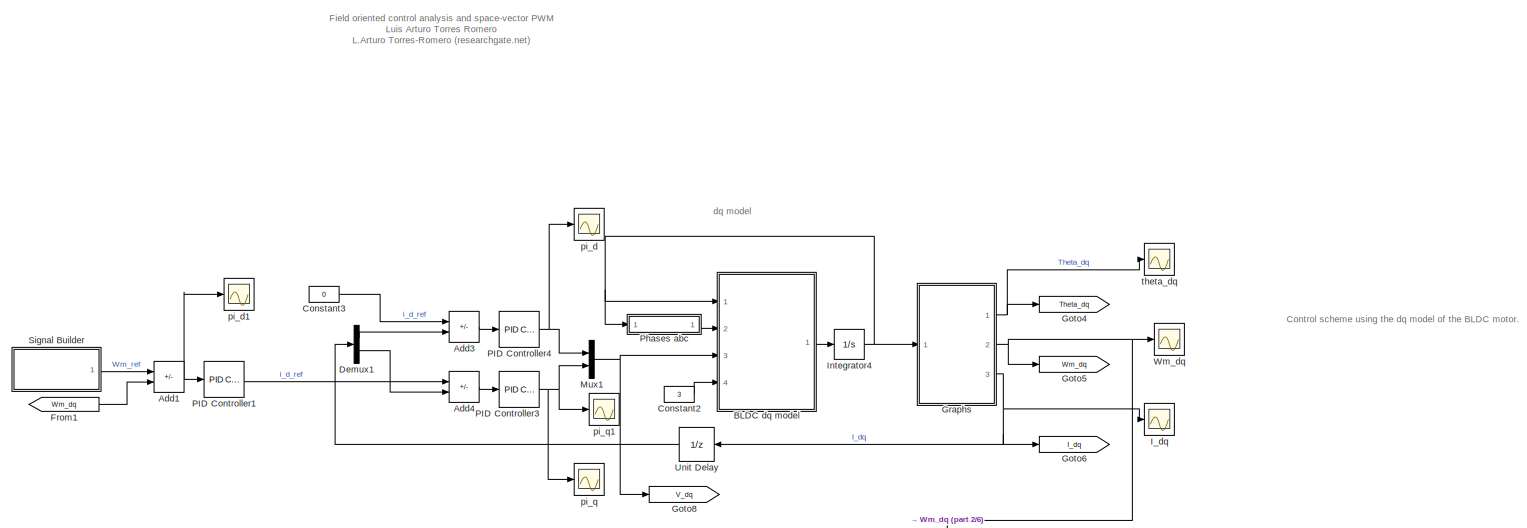
[diagram: root canvas - part 1/6, top center region]
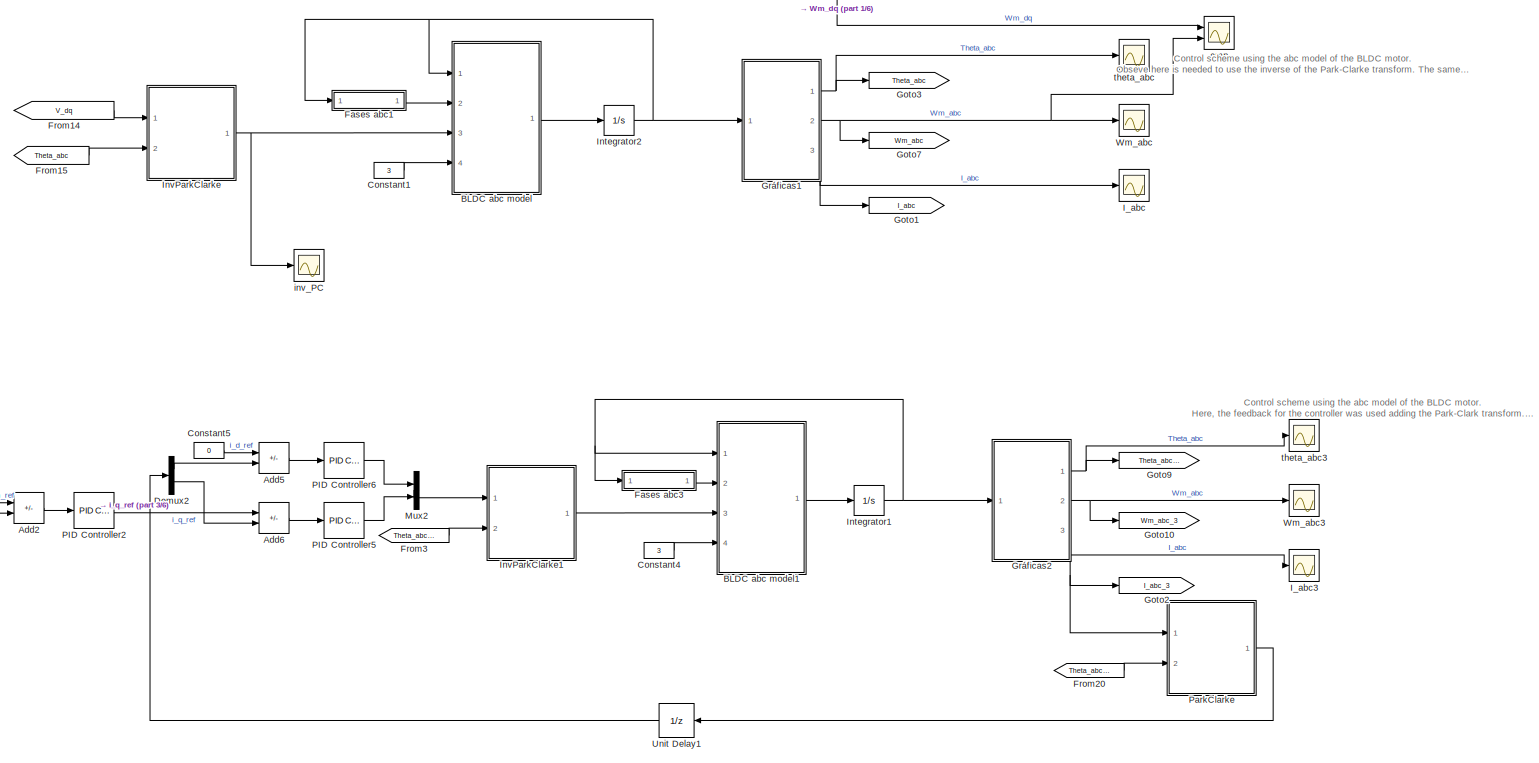
[diagram: root canvas - part 2/6, central region]
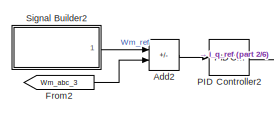
[diagram: root canvas - part 3/6, middle left region]
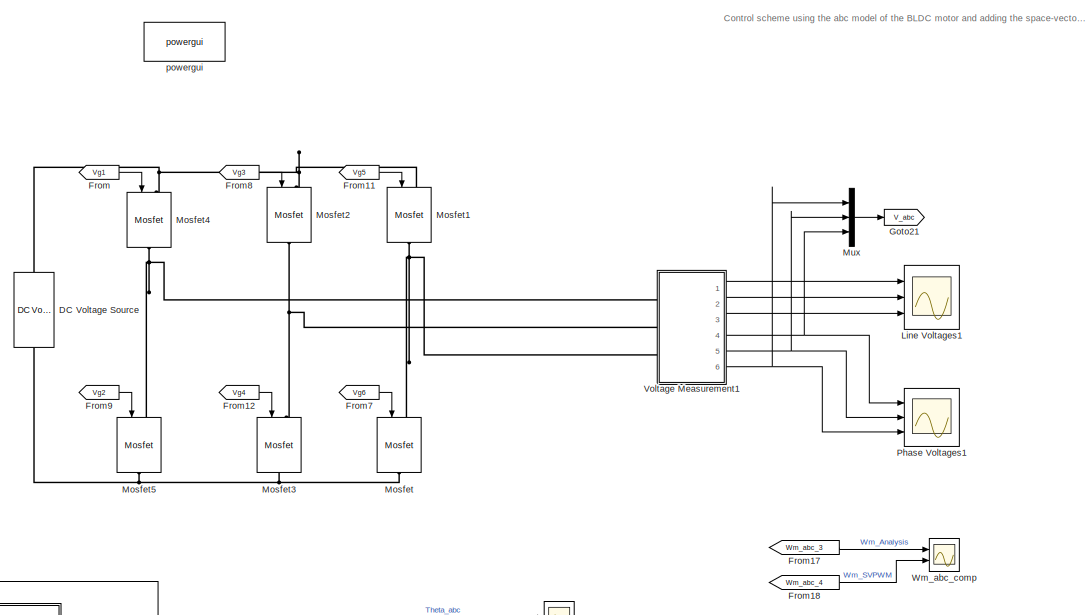
[diagram: root canvas - part 4/6, bottom right region]
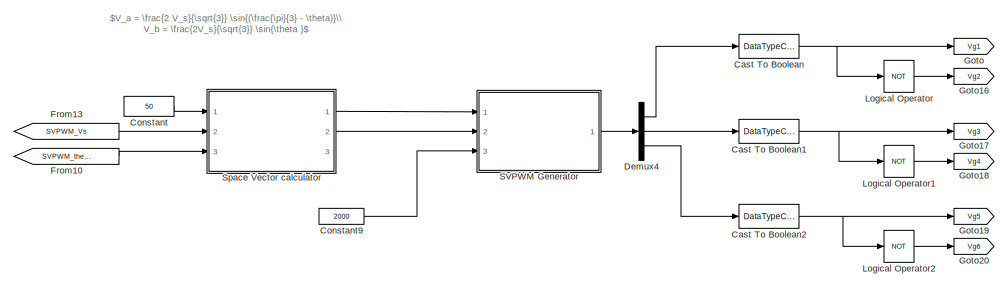
[diagram: root canvas - part 5/6, bottom left region]
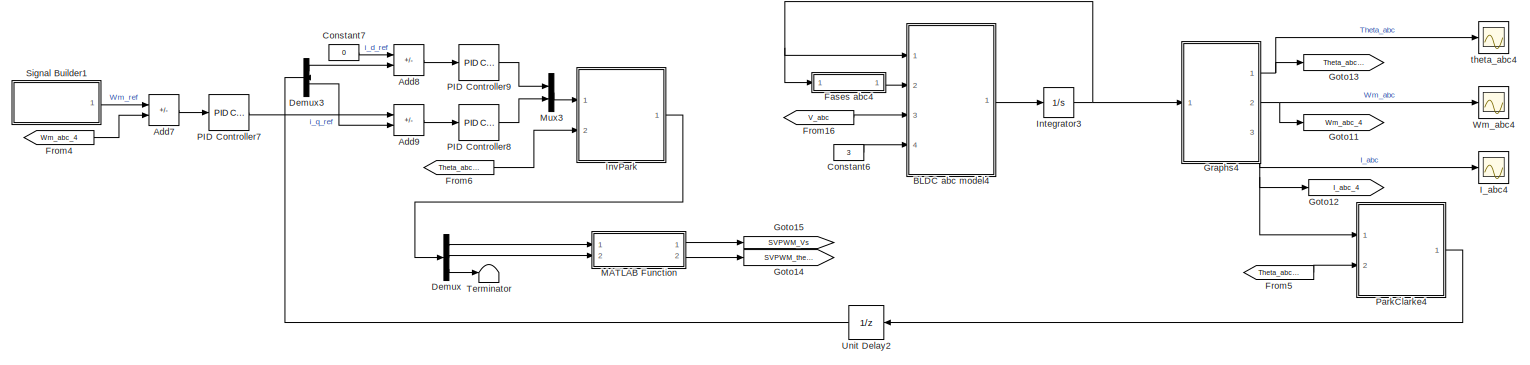
[diagram: root canvas - part 6/6, bottom center region]
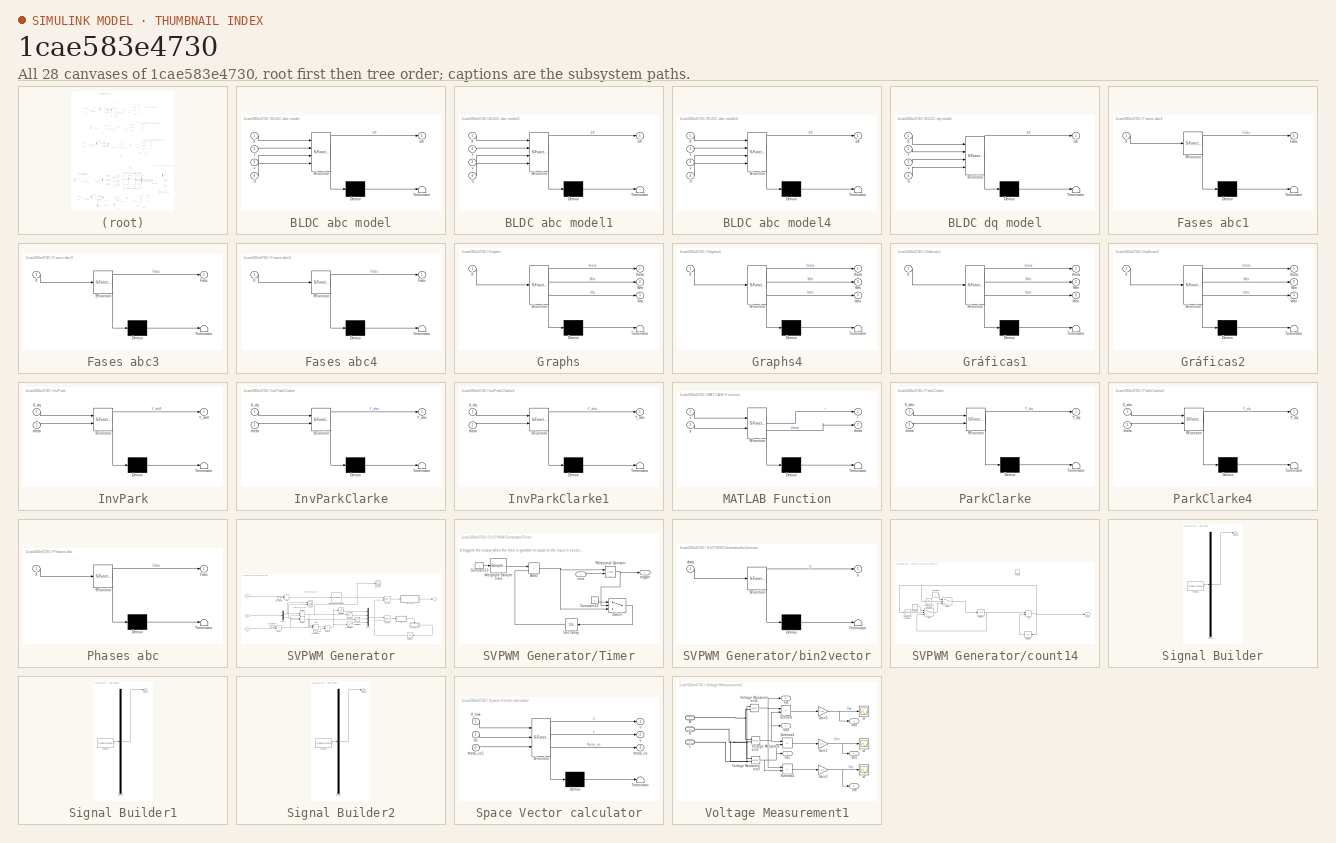
[diagram: thumbnail index - all 28 canvases of the model, root first then tree order]
MODEL slx_1cae583e4730
KIND model
CONFIG AbsTol = auto
CONFIG EnableMultiTasking = off
CONFIG FixedStep = 0.000002
CONFIG MaxStep = auto
CONFIG MinStep = auto
CONFIG RelTol = 1e-3
CONFIG SampleTimeConstraint = Unconstrained
CONFIG SolverName = FixedStepAuto
CONFIG StartTime = 0.0
CONFIG StopTime = 12
WORKSPACE source: mxarray member
WORKSPACE Tl = 3
BLOCK [Sum] Add1
  IconShape = rectangular
  Inputs = +-
  Ports = [2, 1]
BLOCK [Sum] Add2
  IconShape = rectangular
  Inputs = +-
  Ports = [2, 1]
BLOCK [Sum] Add3
  IconShape = rectangular
  Inputs = +-
  Ports = [2, 1]
BLOCK [Sum] Add4
  IconShape = rectangular
  Inputs = +-
  Ports = [2, 1]
BLOCK [Sum] Add5
  IconShape = rectangular
  Inputs = +-
  Ports = [2, 1]
BLOCK [Sum] Add6
  IconShape = rectangular
  Inputs = +-
  Ports = [2, 1]
BLOCK [Sum] Add7
  IconShape = rectangular
  Inputs = +-
  Ports = [2, 1]
BLOCK [Sum] Add8
  IconShape = rectangular
  Inputs = +-
  Ports = [2, 1]
BLOCK [Sum] Add9
  IconShape = rectangular
  Inputs = +-
  Ports = [2, 1]
BLOCK [SubSystem] BLDC abc model
  ErrorFcn = Stateflow.Translate.translate
  PermitHierarchicalResolution = ExplicitOnly
  Ports = [4, 1]
  RequestExecContextInheritance = off
  SFBlockType = MATLAB Function
  TreatAsAtomicUnit = on
BLOCK [Demux] BLDC abc model/ Demux 
  Outputs = 1
  Ports = [1, 1]
BLOCK [S-Function] BLDC abc model/ SFunction 
  EnableBusSupport = on
  FunctionName = sf_sfun
  PortCounts = [4 2]
  Ports = [4, 2]
  SFcnIsStateOwnerBlock = off
  SFunctionDeploymentMode = off
  Tag = Stateflow S-Function 4
BLOCK [Terminator] BLDC abc model/ Terminator 
BLOCK [Inport] BLDC abc model/Tl
  Port = 4
BLOCK [Inport] BLDC abc model/X
BLOCK [Outport] BLDC abc model/dX
  VectorParamsAs1DForOutWhenUnconnected = off
BLOCK [Inport] BLDC abc model/f
  Port = 2
BLOCK [Inport] BLDC abc model/v
  Port = 3
BLOCK [SubSystem] BLDC abc model1
  ErrorFcn = Stateflow.Translate.translate
  PermitHierarchicalResolution = ExplicitOnly
  Ports = [4, 1]
  RequestExecContextInheritance = off
  SFBlockType = MATLAB Function
  TreatAsAtomicUnit = on
BLOCK [Demux] BLDC abc model1/ Demux 
  Outputs = 1
  Ports = [1, 1]
BLOCK [S-Function] BLDC abc model1/ SFunction 
  EnableBusSupport = on
  FunctionName = sf_sfun
  PortCounts = [4 2]
  Ports = [4, 2]
  SFcnIsStateOwnerBlock = off
  SFunctionDeploymentMode = off
  Tag = Stateflow S-Function 1
BLOCK [Terminator] BLDC abc model1/ Terminator 
BLOCK [Inport] BLDC abc model1/Tl
  Port = 4
BLOCK [Inport] BLDC abc model1/X
BLOCK [Outport] BLDC abc model1/dX
  VectorParamsAs1DForOutWhenUnconnected = off
BLOCK [Inport] BLDC abc model1/f
  Port = 2
BLOCK [Inport] BLDC abc model1/v
  Port = 3
BLOCK [SubSystem] BLDC abc model4
  ErrorFcn = Stateflow.Translate.translate
  PermitHierarchicalResolution = ExplicitOnly
  Ports = [4, 1]
  RequestExecContextInheritance = off
  SFBlockType = MATLAB Function
  TreatAsAtomicUnit = on
BLOCK [Demux] BLDC abc model4/ Demux 
  Outputs = 1
  Ports = [1, 1]
BLOCK [S-Function] BLDC abc model4/ SFunction 
  EnableBusSupport = on
  FunctionName = sf_sfun
  PortCounts = [4 2]
  Ports = [4, 2]
  SFcnIsStateOwnerBlock = off
  SFunctionDeploymentMode = off
  Tag = Stateflow S-Function 13
BLOCK [Terminator] BLDC abc model4/ Terminator 
BLOCK [Inport] BLDC abc model4/Tl
  Port = 4
BLOCK [Inport] BLDC abc model4/X
BLOCK [Outport] BLDC abc model4/dX
  VectorParamsAs1DForOutWhenUnconnected = off
BLOCK [Inport] BLDC abc model4/f
  Port = 2
BLOCK [Inport] BLDC abc model4/v
  Port = 3
BLOCK [SubSystem] BLDC dq model
  ErrorFcn = Stateflow.Translate.translate
  PermitHierarchicalResolution = ExplicitOnly
  Ports = [4, 1]
  RequestExecContextInheritance = off
  SFBlockType = MATLAB Function
  TreatAsAtomicUnit = on
BLOCK [Demux] BLDC dq model/ Demux 
  Outputs = 1
  Ports = [1, 1]
BLOCK [S-Function] BLDC dq model/ SFunction 
  EnableBusSupport = on
  FunctionName = sf_sfun
  PortCounts = [4 2]
  Ports = [4, 2]
  SFcnIsStateOwnerBlock = off
  SFunctionDeploymentMode = off
  Tag = Stateflow S-Function 10
BLOCK [Terminator] BLDC dq model/ Terminator 
BLOCK [Inport] BLDC dq model/Tl
  Port = 4
BLOCK [Inport] BLDC dq model/X
BLOCK [Outport] BLDC dq model/dX
  VectorParamsAs1DForOutWhenUnconnected = off
BLOCK [Inport] BLDC dq model/f
  Port = 2
BLOCK [Inport] BLDC dq model/v
  Port = 3
BLOCK [DataTypeConversion] Cast To Boolean
  OutDataTypeStr = boolean
  RndMeth = Floor
  SaturateOnIntegerOverflow = off
BLOCK [DataTypeConversion] Cast To Boolean1
  OutDataTypeStr = boolean
  RndMeth = Floor
  SaturateOnIntegerOverflow = off
BLOCK [DataTypeConversion] Cast To Boolean2
  OutDataTypeStr = boolean
  RndMeth = Floor
  SaturateOnIntegerOverflow = off
BLOCK [Constant] Constant
  Value = 50
BLOCK [Constant] Constant1
  Value = 3
BLOCK [Constant] Constant2
  Value = 3
BLOCK [Constant] Constant3
  Value = 0
BLOCK [Constant] Constant4
  Value = 3
BLOCK [Constant] Constant5
  Value = 0
BLOCK [Constant] Constant6
  Value = 3
BLOCK [Constant] Constant7
  Value = 0
BLOCK [Constant] Constant9
  Value = 2000
BLOCK [Reference] DC Voltage Source  REF=spsDCVoltageSourceLib/DC Voltage Source
  NameLocation = right
  Ports = [0, 0, 0, 0, 0, 1, 1]
  SourceBlock = spsDCVoltageSourceLib/DC Voltage Source
  SourceProductBaseCode = PS
  SourceType = DC Voltage Source
BLOCK [Demux] Demux
  Outputs = 3
  Ports = [1, 3]
BLOCK [Demux] Demux1
  Outputs = 2
  Ports = [1, 2]
BLOCK [Demux] Demux2
  Outputs = 2
  Ports = [1, 2]
BLOCK [Demux] Demux3
  Outputs = 2
  Ports = [1, 2]
BLOCK [Demux] Demux4
  Outputs = 3
  Ports = [1, 3]
BLOCK [SubSystem] Fases abc1
  ErrorFcn = Stateflow.Translate.translate
  PermitHierarchicalResolution = ExplicitOnly
  Ports = [1, 1]
  RequestExecContextInheritance = off
  SFBlockType = MATLAB Function
  TreatAsAtomicUnit = on
BLOCK [Demux] Fases abc1/ Demux 
  Outputs = 1
  Ports = [1, 1]
BLOCK [S-Function] Fases abc1/ SFunction 
  EnableBusSupport = on
  FunctionName = sf_sfun
  PortCounts = [1 2]
  Ports = [1, 2]
  SFcnIsStateOwnerBlock = off
  SFunctionDeploymentMode = off
  Tag = Stateflow S-Function 2
BLOCK [Terminator] Fases abc1/ Terminator 
BLOCK [Outport] Fases abc1/Fabc
  VectorParamsAs1DForOutWhenUnconnected = off
BLOCK [Inport] Fases abc1/X
BLOCK [SubSystem] Fases abc3
  ErrorFcn = Stateflow.Translate.translate
  PermitHierarchicalResolution = ExplicitOnly
  Ports = [1, 1]
  RequestExecContextInheritance = off
  SFBlockType = MATLAB Function
  TreatAsAtomicUnit = on
BLOCK [Demux] Fases abc3/ Demux 
  Outputs = 1
  Ports = [1, 1]
BLOCK [S-Function] Fases abc3/ SFunction 
  EnableBusSupport = on
  FunctionName = sf_sfun
  PortCounts = [1 2]
  Ports = [1, 2]
  SFcnIsStateOwnerBlock = off
  SFunctionDeploymentMode = off
  Tag = Stateflow S-Function 3
BLOCK [Terminator] Fases abc3/ Terminator 
BLOCK [Outport] Fases abc3/Fabc
  VectorParamsAs1DForOutWhenUnconnected = off
BLOCK [Inport] Fases abc3/X
BLOCK [SubSystem] Fases abc4
  ErrorFcn = Stateflow.Translate.translate
  PermitHierarchicalResolution = ExplicitOnly
  Ports = [1, 1]
  RequestExecContextInheritance = off
  SFBlockType = MATLAB Function
  TreatAsAtomicUnit = on
BLOCK [Demux] Fases abc4/ Demux 
  Outputs = 1
  Ports = [1, 1]
BLOCK [S-Function] Fases abc4/ SFunction 
  EnableBusSupport = on
  FunctionName = sf_sfun
  PortCounts = [1 2]
  Ports = [1, 2]
  SFcnIsStateOwnerBlock = off
  SFunctionDeploymentMode = off
  Tag = Stateflow S-Function 14
BLOCK [Terminator] Fases abc4/ Terminator 
BLOCK [Outport] Fases abc4/Fabc
  VectorParamsAs1DForOutWhenUnconnected = off
BLOCK [Inport] Fases abc4/X
BLOCK [From] From
  CloseFcn = tagdialog Close
  GotoTag = Vg1
BLOCK [From] From1
  GotoTag = Wm_dq
BLOCK [From] From10
  GotoTag = SVPWM_theta
BLOCK [From] From11
  CloseFcn = tagdialog Close
  GotoTag = Vg5
BLOCK [From] From12
  CloseFcn = tagdialog Close
  GotoTag = Vg4
BLOCK [From] From13
  GotoTag = SVPWM_Vs
BLOCK [From] From14
  GotoTag = V_dq
BLOCK [From] From15
  GotoTag = Theta_abc
BLOCK [From] From16
  GotoTag = V_abc
BLOCK [From] From17
  GotoTag = Wm_abc_3
BLOCK [From] From18
  GotoTag = Wm_abc_4
BLOCK [From] From2
  GotoTag = Wm_abc_3
BLOCK [From] From20
  GotoTag = Theta_abc_3
BLOCK [From] From3
  GotoTag = Theta_abc_3
BLOCK [From] From4
  GotoTag = Wm_abc_4
BLOCK [From] From5
  GotoTag = Theta_abc_4
BLOCK [From] From6
  GotoTag = Theta_abc_4
BLOCK [From] From7
  CloseFcn = tagdialog Close
  GotoTag = Vg6
BLOCK [From] From8
  CloseFcn = tagdialog Close
  GotoTag = Vg3
BLOCK [From] From9
  CloseFcn = tagdialog Close
  GotoTag = Vg2
BLOCK [Goto] Goto
  GotoTag = Vg1
BLOCK [Goto] Goto1
  GotoTag = I_abc
BLOCK [Goto] Goto10
  GotoTag = Wm_abc_3
BLOCK [Goto] Goto11
  GotoTag = Wm_abc_4
BLOCK [Goto] Goto12
  GotoTag = I_abc_4
BLOCK [Goto] Goto13
  GotoTag = Theta_abc_4
BLOCK [Goto] Goto14
  GotoTag = SVPWM_theta
BLOCK [Goto] Goto15
  GotoTag = SVPWM_Vs
BLOCK [Goto] Goto16
  GotoTag = Vg2
BLOCK [Goto] Goto17
  GotoTag = Vg3
BLOCK [Goto] Goto18
  GotoTag = Vg4
BLOCK [Goto] Goto19
  GotoTag = Vg5
BLOCK [Goto] Goto2
  GotoTag = I_abc_3
BLOCK [Goto] Goto20
  GotoTag = Vg6
BLOCK [Goto] Goto21
  GotoTag = V_abc
BLOCK [Goto] Goto3
  GotoTag = Theta_abc
BLOCK [Goto] Goto4
  GotoTag = Theta_dq
BLOCK [Goto] Goto5
  GotoTag = Wm_dq
BLOCK [Goto] Goto6
  GotoTag = I_dq
BLOCK [Goto] Goto7
  GotoTag = Wm_abc
BLOCK [Goto] Goto8
  GotoTag = V_dq
BLOCK [Goto] Goto9
  GotoTag = Theta_abc_3
BLOCK [SubSystem] Graphs
  ErrorFcn = Stateflow.Translate.translate
  PermitHierarchicalResolution = ExplicitOnly
  Ports = [1, 3]
  RequestExecContextInheritance = off
  SFBlockType = MATLAB Function
  TreatAsAtomicUnit = on
BLOCK [Demux] Graphs/ Demux 
  Outputs = 1
  Ports = [1, 1]
BLOCK [S-Function] Graphs/ SFunction 
  EnableBusSupport = on
  FunctionName = sf_sfun
  PortCounts = [1 4]
  Ports = [1, 4]
  SFcnIsStateOwnerBlock = off
  SFunctionDeploymentMode = off
  Tag = Stateflow S-Function 12
BLOCK [Terminator] Graphs/ Terminator 
BLOCK [Outport] Graphs/Idq
  Port = 3
  VectorParamsAs1DForOutWhenUnconnected = off
BLOCK [Outport] Graphs/Wm
  Port = 2
  VectorParamsAs1DForOutWhenUnconnected = off
BLOCK [Inport] Graphs/X
BLOCK [Outport] Graphs/theta
  VectorParamsAs1DForOutWhenUnconnected = off
BLOCK [SubSystem] Graphs4
  ErrorFcn = Stateflow.Translate.translate
  PermitHierarchicalResolution = ExplicitOnly
  Ports = [1, 3]
  RequestExecContextInheritance = off
  SFBlockType = MATLAB Function
  TreatAsAtomicUnit = on
BLOCK [Demux] Graphs4/ Demux 
  Outputs = 1
  Ports = [1, 1]
BLOCK [S-Function] Graphs4/ SFunction 
  EnableBusSupport = on
  FunctionName = sf_sfun
  PortCounts = [1 4]
  Ports = [1, 4]
  SFcnIsStateOwnerBlock = off
  SFunctionDeploymentMode = off
  Tag = Stateflow S-Function 15
BLOCK [Terminator] Graphs4/ Terminator 
BLOCK [Outport] Graphs4/Iabc
  Port = 3
  VectorParamsAs1DForOutWhenUnconnected = off
BLOCK [Outport] Graphs4/Wm
  Port = 2
  VectorParamsAs1DForOutWhenUnconnected = off
BLOCK [Inport] Graphs4/X
BLOCK [Outport] Graphs4/theta
  VectorParamsAs1DForOutWhenUnconnected = off
BLOCK [SubSystem] Gráficas1
  ErrorFcn = Stateflow.Translate.translate
  PermitHierarchicalResolution = ExplicitOnly
  Ports = [1, 3]
  RequestExecContextInheritance = off
  SFBlockType = MATLAB Function
  TreatAsAtomicUnit = on
BLOCK [Demux] Gráficas1/ Demux 
  Outputs = 1
  Ports = [1, 1]
BLOCK [S-Function] Gráficas1/ SFunction 
  EnableBusSupport = on
  FunctionName = sf_sfun
  PortCounts = [1 4]
  Ports = [1, 4]
  SFcnIsStateOwnerBlock = off
  SFunctionDeploymentMode = off
  Tag = Stateflow S-Function 6
BLOCK [Terminator] Gráficas1/ Terminator 
BLOCK [Outport] Gráficas1/Iabc
  Port = 3
  VectorParamsAs1DForOutWhenUnconnected = off
BLOCK [Outport] Gráficas1/Wm
  Port = 2
  VectorParamsAs1DForOutWhenUnconnected = off
BLOCK [Inport] Gráficas1/X
BLOCK [Outport] Gráficas1/theta
  VectorParamsAs1DForOutWhenUnconnected = off
BLOCK [SubSystem] Gráficas2
  ErrorFcn = Stateflow.Translate.translate
  PermitHierarchicalResolution = ExplicitOnly
  Ports = [1, 3]
  RequestExecContextInheritance = off
  SFBlockType = MATLAB Function
  TreatAsAtomicUnit = on
BLOCK [Demux] Gráficas2/ Demux 
  Outputs = 1
  Ports = [1, 1]
BLOCK [S-Function] Gráficas2/ SFunction 
  EnableBusSupport = on
  FunctionName = sf_sfun
  PortCounts = [1 4]
  Ports = [1, 4]
  SFcnIsStateOwnerBlock = off
  SFunctionDeploymentMode = off
  Tag = Stateflow S-Function 5
BLOCK [Terminator] Gráficas2/ Terminator 
BLOCK [Outport] Gráficas2/Iabc
  Port = 3
  VectorParamsAs1DForOutWhenUnconnected = off
BLOCK [Outport] Gráficas2/Wm
  Port = 2
  VectorParamsAs1DForOutWhenUnconnected = off
BLOCK [Inport] Gráficas2/X
BLOCK [Outport] Gráficas2/theta
  VectorParamsAs1DForOutWhenUnconnected = off
BLOCK [Scope] I_abc
  Floating = off
  NumInputPorts = 1
  Ports = [1]
  ScopeSpecificationString = Simulink.scopes.TimeScopeBlockCfg('CurrentConfiguration', extmgr.ConfigurationSet(extmgr.Configuration('Core','General UI',true),extmgr.Configuration('Core','Source UI',true),extmgr.Configuration('Sources','WiredSimulink',true,'DataLoggingVariableName','ScopeData1'),extmgr.Configuration('Visuals','Time Domain',true,'SerializedDisplays',{struct('MinYLimReal','-18.92116','MaxYLimReal','18.85483','YL...<+1496ch>
BLOCK [Scope] I_abc3
  Floating = off
  NumInputPorts = 1
  Ports = [1]
  ScopeSpecificationString = Simulink.scopes.TimeScopeBlockCfg('CurrentConfiguration', extmgr.ConfigurationSet(extmgr.Configuration('Core','General UI',true),extmgr.Configuration('Core','Source UI',true),extmgr.Configuration('Sources','WiredSimulink',true,'DataLoggingVariableName','ScopeData1'),extmgr.Configuration('Visuals','Time Domain',true,'SerializedDisplays',{struct('MinYLimReal','-18.92116','MaxYLimReal','18.85483','YL...<+1492ch>
BLOCK [Scope] I_abc4
  Floating = off
  NumInputPorts = 1
  Ports = [1]
  ScopeSpecificationString = Simulink.scopes.TimeScopeBlockCfg('CurrentConfiguration', extmgr.ConfigurationSet(extmgr.Configuration('Core','General UI',true),extmgr.Configuration('Core','Source UI',true),extmgr.Configuration('Sources','WiredSimulink',true,'DataLoggingVariableName','ScopeData1'),extmgr.Configuration('Visuals','Time Domain',true,'SerializedDisplays',{struct('MinYLimReal','-18.92116','MaxYLimReal','18.85483','YL...<+1492ch>
BLOCK [Scope] I_dq
  Floating = off
  NumInputPorts = 1
  Ports = [1]
  ScopeSpecificationString = Simulink.scopes.TimeScopeBlockCfg('CurrentConfiguration', extmgr.ConfigurationSet(extmgr.Configuration('Core','General UI',true),extmgr.Configuration('Core','Source UI',true),extmgr.Configuration('Sources','WiredSimulink',true,'DataLoggingVariableName','ScopeData1'),extmgr.Configuration('Visuals','Time Domain',true,'SerializedDisplays',{struct('MinYLimReal','-29.81665','MaxYLimReal','3.4226','YLab...<+1476ch>
BLOCK [Integrator] Integrator1
  InitialCondition = [0;0;0;0.1;0.1]
  Ports = [1, 1]
BLOCK [Integrator] Integrator2
  InitialCondition = [0;0;0;0.1;0.1]
  Ports = [1, 1]
BLOCK [Integrator] Integrator3
  InitialCondition = [0;0;0;0.1;0.1]
  Ports = [1, 1]
BLOCK [Integrator] Integrator4
  InitialCondition = [0;0;0.1;0.1]
  Ports = [1, 1]
BLOCK [SubSystem] InvPark
  ErrorFcn = Stateflow.Translate.translate
  PermitHierarchicalResolution = ExplicitOnly
  Ports = [2, 1]
  RequestExecContextInheritance = off
  SFBlockType = MATLAB Function
  TreatAsAtomicUnit = on
BLOCK [Demux] InvPark/ Demux 
  Outputs = 1
  Ports = [1, 1]
BLOCK [S-Function] InvPark/ SFunction 
  EnableBusSupport = on
  FunctionName = sf_sfun
  PortCounts = [2 2]
  Ports = [2, 2]
  SFcnIsStateOwnerBlock = off
  SFunctionDeploymentMode = off
  Tag = Stateflow S-Function 18
BLOCK [Terminator] InvPark/ Terminator 
BLOCK [Inport] InvPark/X_dq
BLOCK [Outport] InvPark/Y_ab0
  VectorParamsAs1DForOutWhenUnconnected = off
BLOCK [Inport] InvPark/theta
  Port = 2
BLOCK [SubSystem] InvParkClarke
  ErrorFcn = Stateflow.Translate.translate
  PermitHierarchicalResolution = ExplicitOnly
  Ports = [2, 1]
  RequestExecContextInheritance = off
  SFBlockType = MATLAB Function
  TreatAsAtomicUnit = on
BLOCK [Demux] InvParkClarke/ Demux 
  Outputs = 1
  Ports = [1, 1]
BLOCK [S-Function] InvParkClarke/ SFunction 
  EnableBusSupport = on
  FunctionName = sf_sfun
  PortCounts = [2 2]
  Ports = [2, 2]
  SFcnIsStateOwnerBlock = off
  SFunctionDeploymentMode = off
  Tag = Stateflow S-Function 7
BLOCK [Terminator] InvParkClarke/ Terminator 
BLOCK [Inport] InvParkClarke/X_dq
BLOCK [Outport] InvParkClarke/Y_abc
  VectorParamsAs1DForOutWhenUnconnected = off
BLOCK [Inport] InvParkClarke/theta
  Port = 2
BLOCK [SubSystem] InvParkClarke1
  ErrorFcn = Stateflow.Translate.translate
  PermitHierarchicalResolution = ExplicitOnly
  Ports = [2, 1]
  RequestExecContextInheritance = off
  SFBlockType = MATLAB Function
  TreatAsAtomicUnit = on
BLOCK [Demux] InvParkClarke1/ Demux 
  Outputs = 1
  Ports = [1, 1]
BLOCK [S-Function] InvParkClarke1/ SFunction 
  EnableBusSupport = on
  FunctionName = sf_sfun
  PortCounts = [2 2]
  Ports = [2, 2]
  SFcnIsStateOwnerBlock = off
  SFunctionDeploymentMode = off
  Tag = Stateflow S-Function 8
BLOCK [Terminator] InvParkClarke1/ Terminator 
BLOCK [Inport] InvParkClarke1/X_dq
BLOCK [Outport] InvParkClarke1/Y_abc
  VectorParamsAs1DForOutWhenUnconnected = off
BLOCK [Inport] InvParkClarke1/theta
  Port = 2
BLOCK [Scope] Line Voltages1
  Floating = off
  NumInputPorts = 3
  Ports = [3]
  ScopeSpecificationString = Simulink.scopes.TimeScopeBlockCfg('CurrentConfiguration', extmgr.ConfigurationSet(extmgr.Configuration('Core','General UI',true),extmgr.Configuration('Core','Source UI',true),extmgr.Configuration('Sources','WiredSimulink',true,'DataLoggingVariableName','ScopeData4','DataLoggingMaxPoints','50000','DataLoggingLimitDataPoints',true,'DataLoggingDecimation','1','DataLoggingDecimateData',true,'DataLoggi...<+3138ch>
BLOCK [Logic] Logical Operator
  AllPortsSameDT = off
  IconShape = distinctive
  Operator = NOT
  OutDataTypeStr = boolean
  Ports = [1, 1]
BLOCK [Logic] Logical Operator1
  AllPortsSameDT = off
  IconShape = distinctive
  Operator = NOT
  OutDataTypeStr = boolean
  Ports = [1, 1]
BLOCK [Logic] Logical Operator2
  AllPortsSameDT = off
  IconShape = distinctive
  Operator = NOT
  OutDataTypeStr = boolean
  Ports = [1, 1]
BLOCK [SubSystem] MATLAB Function
  ErrorFcn = Stateflow.Translate.translate
  PermitHierarchicalResolution = ExplicitOnly
  Ports = [2, 2]
  RequestExecContextInheritance = off
  SFBlockType = MATLAB Function
  TreatAsAtomicUnit = on
BLOCK [Demux] MATLAB Function/ Demux 
  Outputs = 1
  Ports = [1, 1]
BLOCK [S-Function] MATLAB Function/ SFunction 
  EnableBusSupport = on
  FunctionName = sf_sfun
  PortCounts = [2 3]
  Ports = [2, 3]
  SFcnIsStateOwnerBlock = off
  SFunctionDeploymentMode = off
  Tag = Stateflow S-Function 16
BLOCK [Terminator] MATLAB Function/ Terminator 
BLOCK [Outport] MATLAB Function/r
BLOCK [Outport] MATLAB Function/theta
  Port = 2
BLOCK [Inport] MATLAB Function/x
BLOCK [Inport] MATLAB Function/y
  Port = 2
BLOCK [Reference] Mosfet  REF=spsMosfetLib/Mosfet
  NameLocation = left
  Ports = [1, 0, 0, 0, 0, 1, 1]
  SourceBlock = spsMosfetLib/Mosfet
  SourceProductBaseCode = PS
  SourceType = Mosfet
BLOCK [Reference] Mosfet1  REF=spsMosfetLib/Mosfet
  NameLocation = left
  Ports = [1, 0, 0, 0, 0, 1, 1]
  SourceBlock = spsMosfetLib/Mosfet
  SourceProductBaseCode = PS
  SourceType = Mosfet
BLOCK [Reference] Mosfet2  REF=spsMosfetLib/Mosfet
  NameLocation = left
  Ports = [1, 0, 0, 0, 0, 1, 1]
  SourceBlock = spsMosfetLib/Mosfet
  SourceProductBaseCode = PS
  SourceType = Mosfet
BLOCK [Reference] Mosfet3  REF=spsMosfetLib/Mosfet
  NameLocation = left
  Ports = [1, 0, 0, 0, 0, 1, 1]
  SourceBlock = spsMosfetLib/Mosfet
  SourceProductBaseCode = PS
  SourceType = Mosfet
BLOCK [Reference] Mosfet4  REF=spsMosfetLib/Mosfet
  NameLocation = left
  Ports = [1, 0, 0, 0, 0, 1, 1]
  SourceBlock = spsMosfetLib/Mosfet
  SourceProductBaseCode = PS
  SourceType = Mosfet
BLOCK [Reference] Mosfet5  REF=spsMosfetLib/Mosfet
  NameLocation = left
  Ports = [1, 0, 0, 0, 0, 1, 1]
  SourceBlock = spsMosfetLib/Mosfet
  SourceProductBaseCode = PS
  SourceType = Mosfet
BLOCK [Mux] Mux
  DisplayOption = bar
  Inputs = 3
  Ports = [3, 1]
BLOCK [Mux] Mux1
  DisplayOption = bar
  Inputs = 2
  Ports = [2, 1]
BLOCK [Mux] Mux2
  DisplayOption = bar
  Inputs = 2
  Ports = [2, 1]
BLOCK [Mux] Mux3
  DisplayOption = bar
  Inputs = 2
  Ports = [2, 1]
BLOCK [Reference] PID Controller1  REF=pid_lib/PID Controller
  Ports = [1, 1]
  SourceBlock = pid_lib/PID Controller
  SourceProductBaseCode = SL
  SourceType = PID 1dof
BLOCK [Reference] PID Controller2  REF=pid_lib/PID Controller
  Ports = [1, 1]
  SourceBlock = pid_lib/PID Controller
  SourceProductBaseCode = SL
  SourceType = PID 1dof
BLOCK [Reference] PID Controller3  REF=pid_lib/PID Controller
  Ports = [1, 1]
  SourceBlock = pid_lib/PID Controller
  SourceProductBaseCode = SL
  SourceType = PID 1dof
BLOCK [Reference] PID Controller4  REF=pid_lib/PID Controller
  Ports = [1, 1]
  SourceBlock = pid_lib/PID Controller
  SourceProductBaseCode = SL
  SourceType = PID 1dof
BLOCK [Reference] PID Controller5  REF=pid_lib/PID Controller
  Ports = [1, 1]
  SourceBlock = pid_lib/PID Controller
  SourceProductBaseCode = SL
  SourceType = PID 1dof
BLOCK [Reference] PID Controller6  REF=pid_lib/PID Controller
  Ports = [1, 1]
  SourceBlock = pid_lib/PID Controller
  SourceProductBaseCode = SL
  SourceType = PID 1dof
BLOCK [Reference] PID Controller7  REF=pid_lib/PID Controller
  Ports = [1, 1]
  SourceBlock = pid_lib/PID Controller
  SourceProductBaseCode = SL
  SourceType = PID 1dof
BLOCK [Reference] PID Controller8  REF=pid_lib/PID Controller
  Ports = [1, 1]
  SourceBlock = pid_lib/PID Controller
  SourceProductBaseCode = SL
  SourceType = PID 1dof
BLOCK [Reference] PID Controller9  REF=pid_lib/PID Controller
  Ports = [1, 1]
  SourceBlock = pid_lib/PID Controller
  SourceProductBaseCode = SL
  SourceType = PID 1dof
BLOCK [SubSystem] ParkClarke
  ErrorFcn = Stateflow.Translate.translate
  PermitHierarchicalResolution = ExplicitOnly
  Ports = [2, 1]
  RequestExecContextInheritance = off
  SFBlockType = MATLAB Function
  TreatAsAtomicUnit = on
BLOCK [Demux] ParkClarke/ Demux 
  Outputs = 1
  Ports = [1, 1]
BLOCK [S-Function] ParkClarke/ SFunction 
  EnableBusSupport = on
  FunctionName = sf_sfun
  PortCounts = [2 2]
  Ports = [2, 2]
  SFcnIsStateOwnerBlock = off
  SFunctionDeploymentMode = off
  Tag = Stateflow S-Function 9
BLOCK [Terminator] ParkClarke/ Terminator 
BLOCK [Inport] ParkClarke/X_abc
BLOCK [Outport] ParkClarke/Y_dq
  VectorParamsAs1DForOutWhenUnconnected = off
BLOCK [Inport] ParkClarke/theta
  Port = 2
BLOCK [SubSystem] ParkClarke4
  ErrorFcn = Stateflow.Translate.translate
  PermitHierarchicalResolution = ExplicitOnly
  Ports = [2, 1]
  RequestExecContextInheritance = off
  SFBlockType = MATLAB Function
  TreatAsAtomicUnit = on
BLOCK [Demux] ParkClarke4/ Demux 
  Outputs = 1
  Ports = [1, 1]
BLOCK [S-Function] ParkClarke4/ SFunction 
  EnableBusSupport = on
  FunctionName = sf_sfun
  PortCounts = [2 2]
  Ports = [2, 2]
  SFcnIsStateOwnerBlock = off
  SFunctionDeploymentMode = off
  Tag = Stateflow S-Function 17
BLOCK [Terminator] ParkClarke4/ Terminator 
BLOCK [Inport] ParkClarke4/X_abc
BLOCK [Outport] ParkClarke4/Y_dq
  VectorParamsAs1DForOutWhenUnconnected = off
BLOCK [Inport] ParkClarke4/theta
  Port = 2
BLOCK [Scope] Phase Voltages1
  Floating = off
  NumInputPorts = 3
  Ports = [3]
  ScopeSpecificationString = Simulink.scopes.TimeScopeBlockCfg('CurrentConfiguration', extmgr.ConfigurationSet(extmgr.Configuration('Core','General UI',true),extmgr.Configuration('Core','Source UI',true),extmgr.Configuration('Sources','WiredSimulink',true,'DataLoggingVariableName','ScopeData5','DataLoggingSaveFormat','StructureWithTime','DataLoggingMaxPoints','50000','DataLoggingDecimation','1','DataLoggingDecimateData',true,...<+3180ch>
BLOCK [SubSystem] Phases abc
  ErrorFcn = Stateflow.Translate.translate
  PermitHierarchicalResolution = ExplicitOnly
  Ports = [1, 1]
  RequestExecContextInheritance = off
  SFBlockType = MATLAB Function
  TreatAsAtomicUnit = on
BLOCK [Demux] Phases abc/ Demux 
  Outputs = 1
  Ports = [1, 1]
BLOCK [S-Function] Phases abc/ SFunction 
  EnableBusSupport = on
  FunctionName = sf_sfun
  PortCounts = [1 2]
  Ports = [1, 2]
  SFcnIsStateOwnerBlock = off
  SFunctionDeploymentMode = off
  Tag = Stateflow S-Function 11
BLOCK [Terminator] Phases abc/ Terminator 
BLOCK [Outport] Phases abc/Fabc
  VectorParamsAs1DForOutWhenUnconnected = off
BLOCK [Inport] Phases abc/X
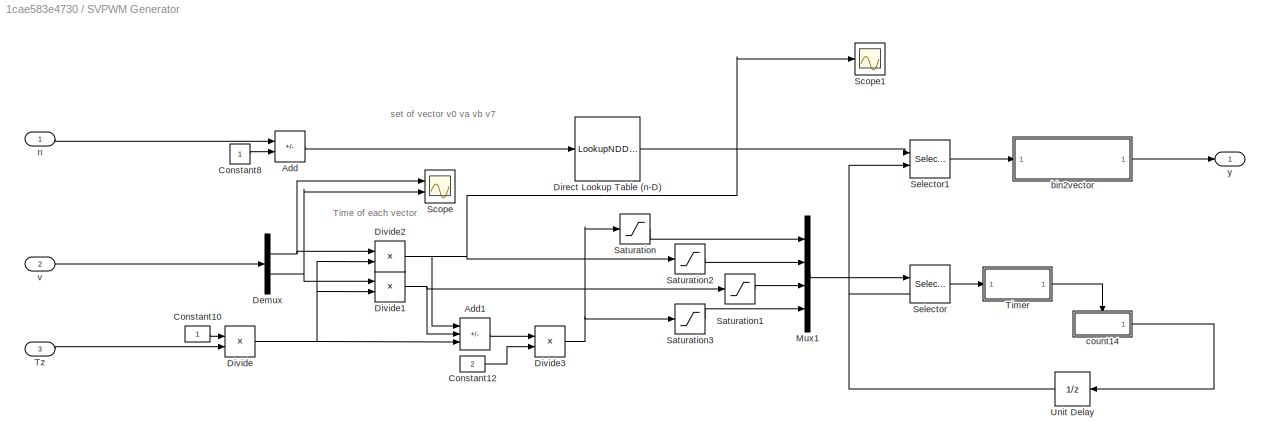
BLOCK [SubSystem] SVPWM Generator
  Ports = [3, 1]
  RequestExecContextInheritance = off
BLOCK [Sum] SVPWM Generator/Add
  IconShape = rectangular
  Inputs = +-
  Ports = [2, 1]
BLOCK [Sum] SVPWM Generator/Add1
  IconShape = rectangular
  Inputs = --+
  Ports = [3, 1]
BLOCK [Constant] SVPWM Generator/Constant10
BLOCK [Constant] SVPWM Generator/Constant12
  Value = 2
BLOCK [Constant] SVPWM Generator/Constant8
BLOCK [Demux] SVPWM Generator/Demux
  Outputs = 2
  Ports = [1, 2]
BLOCK [LookupNDDirect] SVPWM Generator/Direct Lookup Table (n-D)
  InputsSelectThisObjectFromTable = Vector
  Ports = [1, 1]
  Table = [0 1 3 7;0 3 2 7;0 2 6 7;0 6 4 7; 0 4 5 7;0 5 1 7]'
BLOCK [Product] SVPWM Generator/Divide
  Inputs = */
  Ports = [2, 1]
BLOCK [Product] SVPWM Generator/Divide1
  Inputs = **
  Ports = [2, 1]
BLOCK [Product] SVPWM Generator/Divide2
  Inputs = **
  Ports = [2, 1]
BLOCK [Product] SVPWM Generator/Divide3
  Inputs = */
  Ports = [2, 1]
BLOCK [Mux] SVPWM Generator/Mux1
  DisplayOption = bar
  Ports = [4, 1]
BLOCK [Saturate] SVPWM Generator/Saturation
  LowerLimit = 0.00005
  UpperLimit = 10000000
BLOCK [Saturate] SVPWM Generator/Saturation1
  LowerLimit = 0.00005
  UpperLimit = 10000000
BLOCK [Saturate] SVPWM Generator/Saturation2
  LowerLimit = 0.00005
  UpperLimit = 10000000
BLOCK [Saturate] SVPWM Generator/Saturation3
  LowerLimit = 0.00005
  UpperLimit = 10000000
BLOCK [Scope] SVPWM Generator/Scope
  Floating = off
  NumInputPorts = 2
  Ports = [2]
  ScopeSpecificationString = Simulink.scopes.TimeScopeBlockCfg('CurrentConfiguration', extmgr.ConfigurationSet(extmgr.Configuration('Core','General UI',true),extmgr.Configuration('Core','Source UI',true),extmgr.Configuration('Sources','WiredSimulink',true,'DataLoggingVariableName','ScopeData3'),extmgr.Configuration('Visuals','Time Domain',true,'SerializedDisplays',{struct('MinYLimReal','-0.00799','MaxYLimReal','0.02772','YLab...<+2096ch>
BLOCK [Scope] SVPWM Generator/Scope1
  Floating = off
  NumInputPorts = 1
  Ports = [1]
  ScopeSpecificationString = Simulink.scopes.TimeScopeBlockCfg('CurrentConfiguration', extmgr.ConfigurationSet(extmgr.Configuration('Core','General UI',true),extmgr.Configuration('Core','Source UI',true),extmgr.Configuration('Sources','WiredSimulink',true,'DataLoggingVariableName','ScopeData3'),extmgr.Configuration('Visuals','Time Domain',true,'SerializedDisplays',{struct('MinYLimReal','-0.000004','MaxYLimReal','0.000014','YL...<+1428ch>
BLOCK [Selector] SVPWM Generator/Selector
  IndexOptions = Index vector (port)
  Indices = [1 3]
  InputPortWidth = 4
  OutputSizes = 1
  Ports = [2, 1]
BLOCK [Selector] SVPWM Generator/Selector1
  IndexOptions = Index vector (port)
  Indices = [1 3]
  InputPortWidth = 4
  OutputSizes = 1
  Ports = [2, 1]
BLOCK [SubSystem] SVPWM Generator/Timer
  Ports = [1, 1]
  RequestExecContextInheritance = off
BLOCK [Sum] SVPWM Generator/Timer/Add2
  IconShape = rectangular
  Ports = [2, 1]
BLOCK [Constant] SVPWM Generator/Timer/Constant13
BLOCK [Constant] SVPWM Generator/Timer/Constant14
  Value = 0
BLOCK [RelationalOperator] SVPWM Generator/Timer/Relational Operator
  InputSameDT = off
  OutDataTypeStr = boolean
  Ports = [2, 1]
  RndMeth = Simplest
BLOCK [Switch] SVPWM Generator/Timer/Switch
  Criteria = u2 > Threshold
  InputSameDT = off
  SaturateOnIntegerOverflow = off
BLOCK [UnitDelay] SVPWM Generator/Timer/Unit Delay
  HasFrameUpgradeWarning = on
  SampleTime = -1
BLOCK [SampleTimeMath] SVPWM Generator/Timer/Weighted Sample Time
  TsampMathOp = Ts Only
BLOCK [Inport] SVPWM Generator/Timer/time
BLOCK [Outport] SVPWM Generator/Timer/trigger
BLOCK [Inport] SVPWM Generator/Tz
  Port = 3
BLOCK [UnitDelay] SVPWM Generator/Unit Delay
  HasFrameUpgradeWarning = on
  InitialCondition = 1
  SampleTime = -1
BLOCK [SubSystem] SVPWM Generator/bin2vector
  ErrorFcn = Stateflow.Translate.translate
  PermitHierarchicalResolution = ExplicitOnly
  Ports = [1, 1]
  RequestExecContextInheritance = off
  SFBlockType = MATLAB Function
  TreatAsAtomicUnit = on
BLOCK [Demux] SVPWM Generator/bin2vector/ Demux 
  Outputs = 1
  Ports = [1, 1]
BLOCK [S-Function] SVPWM Generator/bin2vector/ SFunction 
  EnableBusSupport = on
  FunctionName = sf_sfun
  PortCounts = [1 2]
  Ports = [1, 2]
  SFcnIsStateOwnerBlock = off
  SFunctionDeploymentMode = off
  Tag = Stateflow S-Function 19
BLOCK [Terminator] SVPWM Generator/bin2vector/ Terminator 
BLOCK [Inport] SVPWM Generator/bin2vector/data
BLOCK [Outport] SVPWM Generator/bin2vector/y
BLOCK [SubSystem] SVPWM Generator/count14
  Ports = [0, 1, 0, 1]
  RequestExecContextInheritance = off
  TreatAsAtomicUnit = on
BLOCK [Sum] SVPWM Generator/count14/Add
  IconShape = rectangular
  Ports = [2, 1]
BLOCK [Reference] SVPWM Generator/count14/Compare To Constant  REF=simulink/Logic and Bit
Operations/Compare
To Constant
  Ports = [1, 1]
  SourceBlock = simulink/Logic and Bit\nOperations/Compare\nTo Constant
  SourceProductBaseCode = SL
  SourceType = Compare To Constant
BLOCK [Reference] SVPWM Generator/count14/Compare To Constant1  REF=simulink/Logic and Bit
Operations/Compare
To Constant
  Ports = [1, 1]
  SourceBlock = simulink/Logic and Bit\nOperations/Compare\nTo Constant
  SourceProductBaseCode = SL
  SourceType = Compare To Constant
BLOCK [Constant] SVPWM Generator/count14/Constant
  Value = -1
BLOCK [Constant] SVPWM Generator/count14/Constant1
BLOCK [Switch] SVPWM Generator/count14/Switch
  Criteria = u2 > Threshold
  InputSameDT = off
  SaturateOnIntegerOverflow = off
  Threshold = 1
BLOCK [Switch] SVPWM Generator/count14/Switch1
  Criteria = u2 > Threshold
  InputSameDT = off
  SaturateOnIntegerOverflow = off
  Threshold = 1
BLOCK [TriggerPort] SVPWM Generator/count14/Trigger
  Ports = []
  StatesWhenEnabling = held
  VariantControl = (inherit)
BLOCK [UnitDelay] SVPWM Generator/count14/Unit Delay
  HasFrameUpgradeWarning = on
  InitialCondition = 1
  SampleTime = -1
BLOCK [UnitDelay] SVPWM Generator/count14/Unit Delay1
  HasFrameUpgradeWarning = on
  InitialCondition = 1
  SampleTime = -1
BLOCK [Outport] SVPWM Generator/count14/count
  InitialOutput = 1
BLOCK [Inport] SVPWM Generator/n
BLOCK [Inport] SVPWM Generator/v
  Port = 2
BLOCK [Outport] SVPWM Generator/y
BLOCK [SubSystem] Signal Builder
  ClipboardFcn = sigbuilder_block('clipboard');
  CloseFcn = sigbuilder_block('close');
  ContinueFcn = sigbuilder_block('continue');
  CopyFcn = sigbuilder_block('copy');
  DeleteFcn = sigbuilder_block('delete');
  LoadFcn = sigbuilder_block('load');
  MaskHideContents = on
  ModelCloseFcn = sigbuilder_block('modelClose');
  NameChangeFcn = sigbuilder_block('namechange');
  OpenFcn = sigbuilder_block('open',[0 30 1152 561.6 ]);
  PauseFcn = sigbuilder_block('pause');
  Ports = [0, 1]
  PreSaveFcn = sigbuilder_block('preSave');
  RequestExecContextInheritance = off
  StartFcn = sigbuilder_block('start');
  StopFcn = sigbuilder_block('stop');
  Tag = STV Subsys
BLOCK [Demux] Signal Builder/Demux
  DisplayOption = none
  Outputs = 1
  Ports = [1, 1]
  Tag = STV Demux
BLOCK [FromWorkspace] Signal Builder/FromWs
  Tag = STV FromWs
  VariableName = tuvar
BLOCK [Outport] Signal Builder/Signal 1
  Tag = STV Outport
BLOCK [SubSystem] Signal Builder1
  ClipboardFcn = sigbuilder_block('clipboard');
  CloseFcn = sigbuilder_block('close');
  ContinueFcn = sigbuilder_block('continue');
  CopyFcn = sigbuilder_block('copy');
  DeleteFcn = sigbuilder_block('delete');
  LoadFcn = sigbuilder_block('load');
  MaskHideContents = on
  ModelCloseFcn = sigbuilder_block('modelClose');
  NameChangeFcn = sigbuilder_block('namechange');
  OpenFcn = sigbuilder_block('open',[5.4 30 1141.2 522.6 ]);
  PauseFcn = sigbuilder_block('pause');
  Ports = [0, 1]
  PreSaveFcn = sigbuilder_block('preSave');
  RequestExecContextInheritance = off
  StartFcn = sigbuilder_block('start');
  StopFcn = sigbuilder_block('stop');
  Tag = STV Subsys
BLOCK [Demux] Signal Builder1/Demux
  DisplayOption = none
  Outputs = 1
  Ports = [1, 1]
  Tag = STV Demux
BLOCK [FromWorkspace] Signal Builder1/FromWs
  Tag = STV FromWs
  VariableName = tuvar
BLOCK [Outport] Signal Builder1/Signal 1
  Tag = STV Outport
BLOCK [SubSystem] Signal Builder2
  ClipboardFcn = sigbuilder_block('clipboard');
  CloseFcn = sigbuilder_block('close');
  ContinueFcn = sigbuilder_block('continue');
  CopyFcn = sigbuilder_block('copy');
  DeleteFcn = sigbuilder_block('delete');
  LoadFcn = sigbuilder_block('load');
  MaskHideContents = on
  ModelCloseFcn = sigbuilder_block('modelClose');
  NameChangeFcn = sigbuilder_block('namechange');
  OpenFcn = sigbuilder_block('open',[0 30 1152 561.6 ]);
  PauseFcn = sigbuilder_block('pause');
  Ports = [0, 1]
  PreSaveFcn = sigbuilder_block('preSave');
  RequestExecContextInheritance = off
  StartFcn = sigbuilder_block('start');
  StopFcn = sigbuilder_block('stop');
  Tag = STV Subsys
BLOCK [Demux] Signal Builder2/Demux
  DisplayOption = none
  Outputs = 1
  Ports = [1, 1]
  Tag = STV Demux
BLOCK [FromWorkspace] Signal Builder2/FromWs
  Tag = STV FromWs
  VariableName = tuvar
BLOCK [Outport] Signal Builder2/Signal 1
  Tag = STV Outport
BLOCK [SubSystem] Space Vector calculator
  ErrorFcn = Stateflow.Translate.translate
  PermitHierarchicalResolution = ExplicitOnly
  Ports = [3, 3]
  RequestExecContextInheritance = off
  SFBlockType = MATLAB Function
  TreatAsAtomicUnit = on
BLOCK [Demux] Space Vector calculator/ Demux 
  Outputs = 1
  Ports = [1, 1]
BLOCK [S-Function] Space Vector calculator/ SFunction 
  EnableBusSupport = on
  FunctionName = sf_sfun
  PortCounts = [3 4]
  Ports = [3, 4]
  SFcnIsStateOwnerBlock = off
  SFunctionDeploymentMode = off
  Tag = Stateflow S-Function 20
BLOCK [Terminator] Space Vector calculator/ Terminator 
BLOCK [Inport] Space Vector calculator/V_link
BLOCK [Inport] Space Vector calculator/Vs
  Port = 2
BLOCK [Outport] Space Vector calculator/n
BLOCK [Outport] Space Vector calculator/theta_vs
  Port = 3
BLOCK [Inport] Space Vector calculator/theta_vs1
  Port = 3
BLOCK [Outport] Space Vector calculator/v
  Port = 2
BLOCK [Terminator] Terminator
BLOCK [UnitDelay] Unit Delay
  HasFrameUpgradeWarning = on
  SampleTime = -1
BLOCK [UnitDelay] Unit Delay1
  HasFrameUpgradeWarning = on
  SampleTime = -1
BLOCK [UnitDelay] Unit Delay2
  HasFrameUpgradeWarning = on
  SampleTime = -1
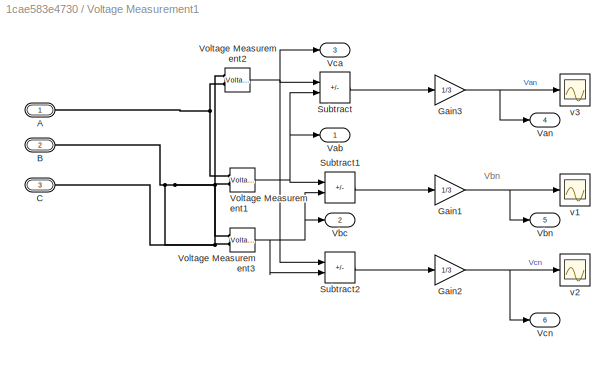
BLOCK [SubSystem] Voltage Measurement1
  Ports = [0, 6, 0, 0, 0, 3]
  RequestExecContextInheritance = off
BLOCK [PMIOPort] Voltage Measurement1/A
  Side = Left
BLOCK [PMIOPort] Voltage Measurement1/B
  Port = 2
  Side = Left
BLOCK [PMIOPort] Voltage Measurement1/C
  Port = 3
  Side = Left
BLOCK [Gain] Voltage Measurement1/Gain1
  Gain = 1/3
BLOCK [Gain] Voltage Measurement1/Gain2
  Gain = 1/3
BLOCK [Gain] Voltage Measurement1/Gain3
  Gain = 1/3
BLOCK [Sum] Voltage Measurement1/Subtract
  IconShape = rectangular
  Inputs = -+
  Ports = [2, 1]
BLOCK [Sum] Voltage Measurement1/Subtract1
  IconShape = rectangular
  Inputs = -+
  Ports = [2, 1]
BLOCK [Sum] Voltage Measurement1/Subtract2
  IconShape = rectangular
  Inputs = +-
  Ports = [2, 1]
BLOCK [Outport] Voltage Measurement1/Vab
  VectorParamsAs1DForOutWhenUnconnected = off
BLOCK [Outport] Voltage Measurement1/Van
  Port = 4
  VectorParamsAs1DForOutWhenUnconnected = off
BLOCK [Outport] Voltage Measurement1/Vbc
  Port = 2
  VectorParamsAs1DForOutWhenUnconnected = off
BLOCK [Outport] Voltage Measurement1/Vbn
  Port = 5
  VectorParamsAs1DForOutWhenUnconnected = off
BLOCK [Outport] Voltage Measurement1/Vca
  Port = 3
  VectorParamsAs1DForOutWhenUnconnected = off
BLOCK [Outport] Voltage Measurement1/Vcn
  Port = 6
  VectorParamsAs1DForOutWhenUnconnected = off
BLOCK [Reference] Voltage Measurement1/Voltage Measurement1  REF=spsVoltageMeasurementLib/Voltage Measurement
  Ports = [0, 1, 0, 0, 0, 2]
  SourceBlock = spsVoltageMeasurementLib/Voltage Measurement
  SourceProductBaseCode = PS
  SourceType = Voltage Measurement
BLOCK [Reference] Voltage Measurement1/Voltage Measurement2  REF=spsVoltageMeasurementLib/Voltage Measurement
  Ports = [0, 1, 0, 0, 0, 2]
  SourceBlock = spsVoltageMeasurementLib/Voltage Measurement
  SourceProductBaseCode = PS
  SourceType = Voltage Measurement
BLOCK [Reference] Voltage Measurement1/Voltage Measurement3  REF=spsVoltageMeasurementLib/Voltage Measurement
  Ports = [0, 1, 0, 0, 0, 2]
  SourceBlock = spsVoltageMeasurementLib/Voltage Measurement
  SourceProductBaseCode = PS
  SourceType = Voltage Measurement
BLOCK [Scope] Voltage Measurement1/v1
  Floating = off
  NumInputPorts = 1
  Ports = [1]
  ScopeSpecificationString = C++SS(StrPVP('Location','[6, 56, 1034, 761]'),StrPVP('Open','off'),MxPVP('AxesTitles',54,'struct(''axes1'',''%<SignalLabel>'')'),StrPVP('SaveName','ScopeData25'),StrPVP('DataFormat','StructureWithTime'),StrPVP('MaxDataPoints','5000000'),StrPVP('BlockParamSampleTime','0'),StrPVP('LimitDataPoints','on'),StrPVP('Decimation','1'),StrPVP('BlockParamSampleInput','off'))
BLOCK [Scope] Voltage Measurement1/v2
  Floating = off
  NumInputPorts = 1
  Ports = [1]
  ScopeSpecificationString = C++SS(StrPVP('Location','[6, 56, 1034, 761]'),StrPVP('Open','off'),MxPVP('AxesTitles',54,'struct(''axes1'',''%<SignalLabel>'')'),StrPVP('SaveName','ScopeData26'),StrPVP('DataFormat','StructureWithTime'),StrPVP('MaxDataPoints','5000000'),StrPVP('BlockParamSampleTime','0'),StrPVP('LimitDataPoints','on'),StrPVP('Decimation','1'),StrPVP('BlockParamSampleInput','off'))
BLOCK [Scope] Voltage Measurement1/v3
  Floating = off
  NumInputPorts = 1
  Ports = [1]
  ScopeSpecificationString = Simulink.scopes.TimeScopeBlockCfg('CurrentConfiguration', extmgr.ConfigurationSet(extmgr.Configuration('Core','General UI',true),extmgr.Configuration('Core','Source UI',true),extmgr.Configuration('Sources','WiredSimulink',true,'DataLoggingVariableName','ScopeData27','DataLoggingSaveFormat','StructureWithTime','DataLoggingMaxPoints','5000000','DataLoggingLimitDataPoints',true,'DataLoggingDecimation...<+1741ch>
BLOCK [Scope] Wm_abc
  Floating = off
  NumInputPorts = 1
  Ports = [1]
  ScopeSpecificationString = Simulink.scopes.TimeScopeBlockCfg('CurrentConfiguration', extmgr.ConfigurationSet(extmgr.Configuration('Core','General UI',true),extmgr.Configuration('Core','Source UI',true),extmgr.Configuration('Sources','WiredSimulink',true,'DataLoggingVariableName','ScopeData2'),extmgr.Configuration('Visuals','Time Domain',true,'SerializedDisplays',{struct('MinYLimReal','-54.31525','MaxYLimReal','22.60215','YL...<+1450ch>
BLOCK [Scope] Wm_abc3
  Floating = off
  NumInputPorts = 1
  Ports = [1]
  ScopeSpecificationString = Simulink.scopes.TimeScopeBlockCfg('CurrentConfiguration', extmgr.ConfigurationSet(extmgr.Configuration('Core','General UI',true),extmgr.Configuration('Core','Source UI',true),extmgr.Configuration('Sources','WiredSimulink',true,'DataLoggingVariableName','ScopeData2'),extmgr.Configuration('Visuals','Time Domain',true,'SerializedDisplays',{struct('MinYLimReal','-76.90759','MaxYLimReal','33.48815','YL...<+1444ch>
BLOCK [Scope] Wm_abc4
  Floating = off
  NumInputPorts = 1
  Ports = [1]
  ScopeSpecificationString = Simulink.scopes.TimeScopeBlockCfg('CurrentConfiguration', extmgr.ConfigurationSet(extmgr.Configuration('Core','General UI',true),extmgr.Configuration('Core','Source UI',true),extmgr.Configuration('Sources','WiredSimulink',true,'DataLoggingVariableName','ScopeData2'),extmgr.Configuration('Visuals','Time Domain',true,'SerializedDisplays',{struct('MinYLimReal','-76.90759','MaxYLimReal','33.48815','YL...<+1449ch>
BLOCK [Scope] Wm_abc_comp
  Floating = off
  NumInputPorts = 2
  Ports = [2]
  ScopeSpecificationString = Simulink.scopes.TimeScopeBlockCfg('CurrentConfiguration', extmgr.ConfigurationSet(extmgr.Configuration('Core','General UI',true,'FigureColor',[1 1 1]),extmgr.Configuration('Core','Source UI',true),extmgr.Configuration('Sources','WiredSimulink',true,'DataLoggingVariableName','ScopeData6'),extmgr.Configuration('Visuals','Time Domain',true,'SerializedDisplays',{struct('MinYLimReal','-76.98253','MaxYL...<+2462ch>
BLOCK [Scope] Wm_dq
  Floating = off
  NumInputPorts = 1
  Ports = [1]
  ScopeSpecificationString = Simulink.scopes.TimeScopeBlockCfg('CurrentConfiguration', extmgr.ConfigurationSet(extmgr.Configuration('Core','General UI',true),extmgr.Configuration('Core','Source UI',true),extmgr.Configuration('Sources','WiredSimulink',true,'DataLoggingVariableName','ScopeData2'),extmgr.Configuration('Visuals','Time Domain',true,'SerializedDisplays',{struct('MinYLimReal','-22.33876','MaxYLimReal','27.42495','YL...<+1443ch>
BLOCK [Scope] cmp
  Floating = off
  NumInputPorts = 2
  Ports = [2]
  ScopeSpecificationString = Simulink.scopes.TimeScopeBlockCfg('CurrentConfiguration', extmgr.ConfigurationSet(extmgr.Configuration('Core','General UI',true),extmgr.Configuration('Core','Source UI',true),extmgr.Configuration('Sources','WiredSimulink',true,'DataLoggingVariableName','ScopeData5'),extmgr.Configuration('Visuals','Time Domain',true,'SerializedDisplays',{struct('MinYLimReal','-78.31994','MaxYLimReal','33.6451','YLa...<+1475ch>
BLOCK [Scope] inv_PC
  Floating = off
  NumInputPorts = 1
  Ports = [1]
  ScopeSpecificationString = Simulink.scopes.TimeScopeBlockCfg('CurrentConfiguration', extmgr.ConfigurationSet(extmgr.Configuration('Core','General UI',true),extmgr.Configuration('Core','Source UI',true),extmgr.Configuration('Sources','WiredSimulink',true,'DataLoggingVariableName','ScopeData4'),extmgr.Configuration('Visuals','Time Domain',true,'SerializedDisplays',{struct('MinYLimReal','-340.05994','MaxYLimReal','261.99942','...<+1530ch>
BLOCK [Scope] pi_d
  Floating = off
  NumInputPorts = 1
  Ports = [1]
  ScopeSpecificationString = Simulink.scopes.TimeScopeBlockCfg('CurrentConfiguration', extmgr.ConfigurationSet(extmgr.Configuration('Core','General UI',true),extmgr.Configuration('Core','Source UI',true),extmgr.Configuration('Sources','WiredSimulink',true,'DataLoggingVariableName','ScopeData1'),extmgr.Configuration('Visuals','Time Domain',true,'SerializedDisplays',{struct('MinYLimReal','-4.36778','MaxYLimReal','1.92701','YLab...<+1447ch>
BLOCK [Scope] pi_d1
  Floating = off
  NumInputPorts = 1
  Ports = [1]
  ScopeSpecificationString = Simulink.scopes.TimeScopeBlockCfg('CurrentConfiguration', extmgr.ConfigurationSet(extmgr.Configuration('Core','General UI',true),extmgr.Configuration('Core','Source UI',true),extmgr.Configuration('Sources','WiredSimulink',true,'DataLoggingVariableName','ScopeData4'),extmgr.Configuration('Visuals','Time Domain',true,'SerializedDisplays',{struct('MinYLimReal','-4.46837','MaxYLimReal','17.58438','YLa...<+1440ch>
BLOCK [Scope] pi_q
  Floating = off
  NumInputPorts = 1
  Ports = [1]
  ScopeSpecificationString = Simulink.scopes.TimeScopeBlockCfg('CurrentConfiguration', extmgr.ConfigurationSet(extmgr.Configuration('Core','General UI',true),extmgr.Configuration('Core','Source UI',true),extmgr.Configuration('Sources','WiredSimulink',true,'DataLoggingVariableName','ScopeData2'),extmgr.Configuration('Visuals','Time Domain',true,'SerializedDisplays',{struct('MinYLimReal','-33.79283','MaxYLimReal','-11.52093','Y...<+1482ch>
BLOCK [Scope] pi_q1
  Floating = off
  NumInputPorts = 1
  Ports = [1]
  ScopeSpecificationString = Simulink.scopes.TimeScopeBlockCfg('CurrentConfiguration', extmgr.ConfigurationSet(extmgr.Configuration('Core','General UI',true),extmgr.Configuration('Core','Source UI',true),extmgr.Configuration('Sources','WiredSimulink',true,'DataLoggingVariableName','ScopeData5'),extmgr.Configuration('Visuals','Time Domain',true,'SerializedDisplays',{struct('MinYLimReal','-72.57616','MaxYLimReal','36.38423','YL...<+1480ch>
BLOCK [Reference] powergui  REF=spspowerguiLib/powergui
  Ports = []
  Priority = 1
  SourceBlock = spspowerguiLib/powergui
  SourceProductBaseCode = PS
  SourceType = PSB option menu block
BLOCK [Scope] theta_abc
  Floating = off
  NumInputPorts = 1
  Ports = [1]
  ScopeSpecificationString = Simulink.scopes.TimeScopeBlockCfg('CurrentConfiguration', extmgr.ConfigurationSet(extmgr.Configuration('Core','General UI',true),extmgr.Configuration('Core','Source UI',true),extmgr.Configuration('Sources','WiredSimulink',true,'DataLoggingVariableName','ScopeData3'),extmgr.Configuration('Visuals','Time Domain',true,'SerializedDisplays',{struct('MinYLimReal','-2060.17132','MaxYLimReal','228.90803',...<+1417ch>
BLOCK [Scope] theta_abc3
  Floating = off
  NumInputPorts = 1
  Ports = [1]
  ScopeSpecificationString = Simulink.scopes.TimeScopeBlockCfg('CurrentConfiguration', extmgr.ConfigurationSet(extmgr.Configuration('Core','General UI',true),extmgr.Configuration('Core','Source UI',true),extmgr.Configuration('Sources','WiredSimulink',true,'DataLoggingVariableName','ScopeData3'),extmgr.Configuration('Visuals','Time Domain',true,'SerializedDisplays',{struct('MinYLimReal','-23.14906','MaxYLimReal','186.08949','Y...<+1407ch>
BLOCK [Scope] theta_abc4
  Floating = off
  NumInputPorts = 1
  Ports = [1]
  ScopeSpecificationString = Simulink.scopes.TimeScopeBlockCfg('CurrentConfiguration', extmgr.ConfigurationSet(extmgr.Configuration('Core','General UI',true),extmgr.Configuration('Core','Source UI',true),extmgr.Configuration('Sources','WiredSimulink',true,'DataLoggingVariableName','ScopeData3'),extmgr.Configuration('Visuals','Time Domain',true,'SerializedDisplays',{struct('MinYLimReal','-23.14906','MaxYLimReal','186.08949','Y...<+1407ch>
BLOCK [Scope] theta_dq
  Floating = off
  NumInputPorts = 1
  Ports = [1]
  ScopeSpecificationString = Simulink.scopes.TimeScopeBlockCfg('CurrentConfiguration', extmgr.ConfigurationSet(extmgr.Configuration('Core','General UI',true),extmgr.Configuration('Core','Source UI',true),extmgr.Configuration('Sources','WiredSimulink',true,'DataLoggingVariableName','ScopeData3'),extmgr.Configuration('Visuals','Time Domain',true,'SerializedDisplays',{struct('MinYLimReal','-49.74137','MaxYLimReal','425.45416','Y...<+1431ch>
ANNOTATION (root): dq model
ANNOTATION (root): Control scheme using the abc model of the BLDC motor. Obseve here is needed to use the inverse of the Park-Clarke transform. The same action control is used from the above dq model.
ANNOTATION (root): Control scheme using the dq model of the BLDC motor.
ANNOTATION (root): Control scheme using the abc model of the BLDC motor and adding the space-vector PWM technique
ANNOTATION (root): Control scheme using the abc model of the BLDC motor. Here, the feedback for the controller was used adding the Park-Clark transform. thi sis the complete scheme of control using the dq currents.
ANNOTATION (root): Field oriented control analysis and space-vector PWM Luis Arturo Torres Romero L.Arturo Torres-Romero (researchgate.net)
ANNOTATION (root): $V_a = \frac{2 V_s}{\sqrt{3}} \sin{(\frac{\pi}{3} - \theta)}\\ V_b = \frac{2V_s}{\sqrt{3}} \sin{\theta }$
ANNOTATION SVPWM Generator: Time of each vector
ANNOTATION SVPWM Generator: set of vector v0 va vb v7
ANNOTATION SVPWM Generator/Timer: It triggers the output when the time is greatter or equal to the input in seconds
ANNOTATION Voltage Measurement1: Vbn
NET Add1:1 -> PID Controller1:1, pi_d1:1
LINE Add2:1 -> PID Controller2:1
LINE Add3:1 -> PID Controller4:1
LINE Add4:1 -> PID Controller3:1
LINE Add5:1 -> PID Controller6:1
LINE Add6:1 -> PID Controller5:1
LINE Add7:1 -> PID Controller7:1
LINE Add8:1 -> PID Controller9:1
LINE Add9:1 -> PID Controller8:1
LINE BLDC abc model1:1 -> Integrator1:1
LINE BLDC abc model4:1 -> Integrator3:1
LINE BLDC abc model:1 -> Integrator2:1
LINE BLDC dq model:1 -> Integrator4:1
NET Cast To Boolean1:1 -> Goto17:1, Logical Operator1:1
NET Cast To Boolean2:1 -> Goto19:1, Logical Operator2:1
NET Cast To Boolean:1 -> Goto:1, Logical Operator:1
LINE Constant1:1 -> BLDC abc model:4
LINE Constant2:1 -> BLDC dq model:4
LINE Constant3:1 -> Add3:1
LINE Constant4:1 -> BLDC abc model1:4
LINE Constant5:1 -> Add5:1
LINE Constant6:1 -> BLDC abc model4:4
LINE Constant7:1 -> Add8:1
LINE Constant9:1 -> SVPWM Generator:3
LINE Constant:1 -> Space Vector calculator:1
LINE Demux1:1 -> Add3:2
LINE Demux1:2 -> Add4:2
LINE Demux2:1 -> Add5:2
LINE Demux2:2 -> Add6:2
LINE Demux3:1 -> Add8:2
LINE Demux3:2 -> Add9:2
LINE Demux4:1 -> Cast To Boolean:1
LINE Demux4:2 -> Cast To Boolean1:1
LINE Demux4:3 -> Cast To Boolean2:1
LINE Demux:1 -> MATLAB Function:1
LINE Demux:2 -> MATLAB Function:2
LINE Demux:3 -> Terminator:1
LINE Fases abc1:1 -> BLDC abc model:2
LINE Fases abc3:1 -> BLDC abc model1:2
LINE Fases abc4:1 -> BLDC abc model4:2
LINE From10:1 -> Space Vector calculator:3
LINE From11:1 -> Mosfet1:1
LINE From12:1 -> Mosfet3:1
LINE From13:1 -> Space Vector calculator:2
LINE From14:1 -> InvParkClarke:1
LINE From15:1 -> InvParkClarke:2
LINE From16:1 -> BLDC abc model4:3
LINE From17:1 -> Wm_abc_comp:1
LINE From18:1 -> Wm_abc_comp:2
LINE From1:1 -> Add1:2
LINE From20:1 -> ParkClarke:2
LINE From2:1 -> Add2:2
LINE From3:1 -> InvParkClarke1:2
LINE From4:1 -> Add7:2
LINE From5:1 -> ParkClarke4:2
LINE From6:1 -> InvPark:2
LINE From7:1 -> Mosfet:1
LINE From8:1 -> Mosfet2:1
LINE From9:1 -> Mosfet5:1
LINE From:1 -> Mosfet4:1
NET Graphs4:1 -> Goto13:1, theta_abc4:1
NET Graphs4:2 -> Goto11:1, Wm_abc4:1
NET Graphs4:3 -> Goto12:1, I_abc4:1, ParkClarke4:1
NET Graphs:1 -> Goto4:1, theta_dq:1
NET Graphs:2 -> Goto5:1, Wm_dq:1, cmp:1
NET Graphs:3 -> Goto6:1, I_dq:1, Unit Delay:1
NET Gráficas1:1 -> Goto3:1, theta_abc:1
NET Gráficas1:2 -> Goto7:1, Wm_abc:1, cmp:2
NET Gráficas1:3 -> Goto1:1, I_abc:1
NET Gráficas2:1 -> Goto9:1, theta_abc3:1
NET Gráficas2:2 -> Goto10:1, Wm_abc3:1
NET Gráficas2:3 -> Goto2:1, I_abc3:1, ParkClarke:1
NET Integrator1:1 -> BLDC abc model1:1, Fases abc3:1, Gráficas2:1
NET Integrator2:1 -> BLDC abc model:1, Fases abc1:1, Gráficas1:1
NET Integrator3:1 -> BLDC abc model4:1, Fases abc4:1, Graphs4:1
NET Integrator4:1 -> BLDC dq model:1, Graphs:1, Phases abc:1
LINE InvPark:1 -> Demux:1
LINE InvParkClarke1:1 -> BLDC abc model1:3
NET InvParkClarke:1 -> BLDC abc model:3, inv_PC:1
LINE Logical Operator1:1 -> Goto18:1
LINE Logical Operator2:1 -> Goto20:1
LINE Logical Operator:1 -> Goto16:1
LINE MATLAB Function:1 -> Goto15:1
LINE MATLAB Function:2 -> Goto14:1
NET Mux1:1 -> BLDC dq model:3, Goto8:1
LINE Mux2:1 -> InvParkClarke1:1
LINE Mux3:1 -> InvPark:1
LINE Mux:1 -> Goto21:1
LINE PID Controller1:1 -> Add4:1
LINE PID Controller2:1 -> Add6:1
NET PID Controller3:1 -> Mux1:2, pi_q1:1, pi_q:1
NET PID Controller4:1 -> Mux1:1, pi_d:1
LINE PID Controller5:1 -> Mux2:2
LINE PID Controller6:1 -> Mux2:1
LINE PID Controller7:1 -> Add9:1
LINE PID Controller8:1 -> Mux3:2
LINE PID Controller9:1 -> Mux3:1
LINE ParkClarke4:1 -> Unit Delay2:1
LINE ParkClarke:1 -> Unit Delay1:1
LINE Phases abc:1 -> BLDC dq model:2
LINE SVPWM Generator/Add1:1 -> SVPWM Generator/Divide3:1
LINE SVPWM Generator/Add:1 -> SVPWM Generator/Direct Lookup Table (n-D):1
LINE SVPWM Generator/Constant10:1 -> SVPWM Generator/Divide:1
LINE SVPWM Generator/Constant12:1 -> SVPWM Generator/Divide3:2
LINE SVPWM Generator/Constant8:1 -> SVPWM Generator/Add:2
NET SVPWM Generator/Demux:1 -> SVPWM Generator/Divide2:1, SVPWM Generator/Scope:1
NET SVPWM Generator/Demux:2 -> SVPWM Generator/Divide1:1, SVPWM Generator/Scope:2
LINE SVPWM Generator/Direct Lookup Table (n-D):1 -> SVPWM Generator/Selector1:1
NET SVPWM Generator/Divide1:1 -> SVPWM Generator/Add1:2, SVPWM Generator/Saturation1:1
NET SVPWM Generator/Divide2:1 -> SVPWM Generator/Add1:1, SVPWM Generator/Saturation2:1, SVPWM Generator/Scope1:1
NET SVPWM Generator/Divide3:1 -> SVPWM Generator/Saturation3:1, SVPWM Generator/Saturation:1
NET SVPWM Generator/Divide:1 -> SVPWM Generator/Add1:3, SVPWM Generator/Divide1:2, SVPWM Generator/Divide2:2
LINE SVPWM Generator/Mux1:1 -> SVPWM Generator/Selector:1
LINE SVPWM Generator/Saturation1:1 -> SVPWM Generator/Mux1:3
LINE SVPWM Generator/Saturation2:1 -> SVPWM Generator/Mux1:2
LINE SVPWM Generator/Saturation3:1 -> SVPWM Generator/Mux1:4
LINE SVPWM Generator/Saturation:1 -> SVPWM Generator/Mux1:1
LINE SVPWM Generator/Selector1:1 -> SVPWM Generator/bin2vector:1
LINE SVPWM Generator/Selector:1 -> SVPWM Generator/Timer:1
NET SVPWM Generator/Timer/Add2:1 -> SVPWM Generator/Timer/Relational Operator:1, SVPWM Generator/Timer/Switch:3
LINE SVPWM Generator/Timer/Constant13:1 -> SVPWM Generator/Timer/Weighted Sample Time:1
LINE SVPWM Generator/Timer/Constant14:1 -> SVPWM Generator/Timer/Switch:1
NET SVPWM Generator/Timer/Relational Operator:1 -> SVPWM Generator/Timer/Switch:2, SVPWM Generator/Timer/trigger:1
LINE SVPWM Generator/Timer/Switch:1 -> SVPWM Generator/Timer/Unit Delay:1
LINE SVPWM Generator/Timer/Unit Delay:1 -> SVPWM Generator/Timer/Add2:2
LINE SVPWM Generator/Timer/Weighted Sample Time:1 -> SVPWM Generator/Timer/Add2:1
LINE SVPWM Generator/Timer/time:1 -> SVPWM Generator/Timer/Relational Operator:2
LINE SVPWM Generator/Timer:1 -> SVPWM Generator/count14:trigger
LINE SVPWM Generator/Tz:1 -> SVPWM Generator/Divide:2
NET SVPWM Generator/Unit Delay:1 -> SVPWM Generator/Selector1:2, SVPWM Generator/Selector:2
LINE SVPWM Generator/bin2vector:1 -> SVPWM Generator/y:1
NET SVPWM Generator/count14/Add:1 -> SVPWM Generator/count14/Compare To Constant1:1, SVPWM Generator/count14/Compare To Constant:1, SVPWM Generator/count14/Unit Delay:1, SVPWM Generator/count14/count:1
LINE SVPWM Generator/count14/Compare To Constant1:1 -> SVPWM Generator/count14/Switch1:2
LINE SVPWM Generator/count14/Compare To Constant:1 -> SVPWM Generator/count14/Switch:2
LINE SVPWM Generator/count14/Constant1:1 -> SVPWM Generator/count14/Switch1:1
LINE SVPWM Generator/count14/Constant:1 -> SVPWM Generator/count14/Switch:1
LINE SVPWM Generator/count14/Switch1:1 -> SVPWM Generator/count14/Unit Delay1:1
LINE SVPWM Generator/count14/Switch:1 -> SVPWM Generator/count14/Switch1:3
NET SVPWM Generator/count14/Unit Delay1:1 -> SVPWM Generator/count14/Add:1, SVPWM Generator/count14/Switch:3
LINE SVPWM Generator/count14/Unit Delay:1 -> SVPWM Generator/count14/Add:2
LINE SVPWM Generator/count14:1 -> SVPWM Generator/Unit Delay:1
LINE SVPWM Generator/n:1 -> SVPWM Generator/Add:1
LINE SVPWM Generator/v:1 -> SVPWM Generator/Demux:1
LINE SVPWM Generator:1 -> Demux4:1
LINE Signal Builder1:1 -> Add7:1
LINE Signal Builder2:1 -> Add2:1
LINE Signal Builder:1 -> Add1:1
LINE Space Vector calculator:1 -> SVPWM Generator:1
LINE Space Vector calculator:2 -> SVPWM Generator:2
LINE Unit Delay1:1 -> Demux2:1
LINE Unit Delay2:1 -> Demux3:1
LINE Unit Delay:1 -> Demux1:1
NET Voltage Measurement1/Gain1:1 -> Voltage Measurement1/Vbn:1, Voltage Measurement1/v1:1
NET Voltage Measurement1/Gain2:1 -> Voltage Measurement1/Vcn:1, Voltage Measurement1/v2:1
NET Voltage Measurement1/Gain3:1 -> Voltage Measurement1/Van:1, Voltage Measurement1/v3:1
LINE Voltage Measurement1/Subtract1:1 -> Voltage Measurement1/Gain1:1
LINE Voltage Measurement1/Subtract2:1 -> Voltage Measurement1/Gain2:1
LINE Voltage Measurement1/Subtract:1 -> Voltage Measurement1/Gain3:1
NET Voltage Measurement1/Voltage Measurement1:1 -> Voltage Measurement1/Subtract1:1, Voltage Measurement1/Subtract:2, Voltage Measurement1/Vab:1
NET Voltage Measurement1/Voltage Measurement2:1 -> Voltage Measurement1/Subtract2:1, Voltage Measurement1/Subtract:1, Voltage Measurement1/Vca:1
NET Voltage Measurement1/Voltage Measurement3:1 -> Voltage Measurement1/Subtract1:2, Voltage Measurement1/Subtract2:2, Voltage Measurement1/Vbc:1
LINE Voltage Measurement1:1 -> Line Voltages1:1
LINE Voltage Measurement1:2 -> Line Voltages1:2
LINE Voltage Measurement1:3 -> Line Voltages1:3
NET Voltage Measurement1:4 -> Mux:3, Phase Voltages1:1
NET Voltage Measurement1:5 -> Mux:2, Phase Voltages1:2
NET Voltage Measurement1:6 -> Mux:1, Phase Voltages1:3
PNET net1: DC Voltage Source:LConn1 -- Mosfet3:RConn1 -- Mosfet5:RConn1 -- Mosfet:RConn1
PNET net2: DC Voltage Source:RConn1 -- Mosfet1:LConn1 -- Mosfet2:LConn1 -- Mosfet4:LConn1
PNET net3: Mosfet1:RConn1 -- Mosfet:LConn1 -- Voltage Measurement1:LConn3
PNET net4: Mosfet2:RConn1 -- Mosfet3:LConn1 -- Voltage Measurement1:LConn2
PNET net5: Mosfet4:RConn1 -- Mosfet5:LConn1 -- Voltage Measurement1:LConn1
PNET net6: Voltage Measurement1/A:RConn1 -- Voltage Measurement1/Voltage Measurement1:LConn1 -- Voltage Measurement1/Voltage Measurement2:LConn2
PNET net7: Voltage Measurement1/B:RConn1 -- Voltage Measurement1/Voltage Measurement1:LConn2 -- Voltage Measurement1/Voltage Measurement3:LConn1
PNET net8: Voltage Measurement1/C:RConn1 -- Voltage Measurement1/Voltage Measurement2:LConn1 -- Voltage Measurement1/Voltage Measurement3:LConn2
note: NET lines group one-source signal fan-out (src -> all destinations, sorted); 1:1 wires keep LINE; PNET lines group multi-terminal physical nets as a canonical sorted terminal list (undirected conserving connections); 2-terminal nets keep the pairwise PLINE form
CHART BLDC dq model states=1 transitions=1
  STATE_LABEL 'eML_blk_kernel()'
  STATE_LABEL 'SCRIPT:\nfunction dX = fcn(X,f,v,Tl)\ni_d = X(1); i_q = X(2); wm = X(3); theta = X(4);\ni_dq = X(1:2);\n\nlambda = 0.0433; %\nR = 0.35;    %ohms armature resistance\nL = 0.001;  %H armature inductance\nM = 0.0000;  %H mutual inductance\nJ = 0.00018; % kgm^2 motor inertia\nP = 4; % number of poles\nb = 0.0034;    %Nms Hydraulic friction coefficient of motor rotor\n\n\nM_LR = [-R/(L-M)  wm; -wm  -R/(L-M)];       ...<+425ch>'
CHART Phases abc states=1 transitions=1
  STATE_LABEL 'eML_blk_kernel()'
  STATE_LABEL 'SCRIPT:\nfunction Fabc = fcn(X)\nFabc = [0;0;0];\n    theta = mod(X(4),2*pi); %X(4)\n    %theta = mod(X,2*pi);\n    \n    if (0<=theta)&&(theta<(pi/6))\n        Fa = (6/pi)*theta;\n    elseif ((pi/6)<=theta)&&(theta<(5*pi/6))\n        Fa = 1;\n    elseif ((5*pi/6<=theta))&&(theta<(7*pi/6))\n        Fa = (6/pi)*(pi-theta);\n    elseif ((7*pi/6)<=theta)&&(theta<(11*pi/6))\n        Fa = -1;\n    elseif ((11*pi/6)<...<+988ch>'
CHART Graphs states=1 transitions=1
  STATE_LABEL 'eML_blk_kernel()'
  STATE_LABEL 'SCRIPT:\nfunction [theta,Wm,Idq] = DEMUX(X)\ntheta = X(4); Wm = X(3);Idq = X(1:2);'
CHART BLDC abc model4 states=1 transitions=1
  STATE_LABEL 'eML_blk_kernel()'
  STATE_LABEL 'SCRIPT:\nfunction dX = fcn(X,f,v,Tl)\nu = [v;Tl]; \ni_a = X(1); i_b = X(2); i_c = X(3); wm = X(4); theta = X(5);\n\nlambda = 0.0433; %\nR = 0.35;    %ohms armature resistance\nL = 0.001;  %H armature inductance\nM = 0.0000;  %H mutual inductance\nJ = 0.00018; % kgm^2 motor inertia\nP = 4; % number of poles\nb = 0.0034;    %Nms Hydraulic friction coefficient of motor rotor\n\n%e = [(lamda*wm).*f;0;0];\n\nA =[-(R/...<+311ch>'  <repeated x3 — deduplicated; at blocks: BLDC abc model4, BLDC abc model1, BLDC abc model>
CHART Fases abc4 states=1 transitions=1
  STATE_LABEL 'eML_blk_kernel()'
  STATE_LABEL 'SCRIPT:\nfunction Fabc = fcn(X)\nFabc = [0;0;0];\n    theta = mod(X(5),2*pi); %X(4)\n    %theta = mod(X,2*pi);\n    \n    if (0<=theta)&&(theta<(pi/6))\n        Fa = (6/pi)*theta;\n    elseif ((pi/6)<=theta)&&(theta<(5*pi/6))\n        Fa = 1;\n    elseif ((5*pi/6<=theta))&&(theta<(7*pi/6))\n        Fa = (6/pi)*(pi-theta);\n    elseif ((7*pi/6)<=theta)&&(theta<(11*pi/6))\n        Fa = -1;\n    elseif ((11*pi/6)<...<+996ch>'  <repeated x3 — deduplicated; at blocks: Fases abc4, Fases abc1, Fases abc3>
CHART Graphs4 states=1 transitions=1
  STATE_LABEL 'eML_blk_kernel()'
  STATE_LABEL 'SCRIPT:\nfunction [theta,Wm,Iabc] = DEMUX(X)\ntheta = X(5); Wm = X(4);Iabc = X(1:3);'
CHART MATLAB Function states=1 transitions=1
  STATE_LABEL 'eML_blk_kernel()'
  STATE_LABEL 'SCRIPT:\nfunction [r, theta] = rec2polar(x, y)\n\nr = sqrt(x^2 + y^2);\ntheta = atan2(y,x);\n\n'
CHART ParkClarke4 states=1 transitions=1
  STATE_LABEL 'eML_blk_kernel()'
  STATE_LABEL 'SCRIPT:\nfunction Y_dq = fcn(X_abc, theta)\n\n% Park clarke transform eliminating the third element\nPC_T = (sqrt(2)/2)*[sqrt(3)*cos(theta)  sin(theta)  -sin(theta) ; ...\n                    -sqrt(3)*sin(theta)  cos(theta)  -cos(theta)];\n\nY_dq =PC_T*X_abc;\nend'
CHART InvPark states=1 transitions=1
  STATE_LABEL 'eML_blk_kernel()'
  STATE_LABEL 'SCRIPT:\nfunction Y_ab0 = fcn(X_dq, theta)\nX_dq0 = [X_dq; 0];\n\n%inverse Park \niT_C = [cos(theta)   -sin(theta)    0; ...\n        sin(theta)    cos(theta)    0; ...\n        0             0             1];\n%               \n             \nY_ab0 =iT_C*X_dq0;\nend'
CHART SVPWM Generator/bin2vector states=1 transitions=1
  STATE_LABEL 'eML_blk_kernel()'
  STATE_LABEL "SCRIPT:\nfunction y = binary2vector(data)\ny = [0; 0; 0];\ng = dec2bin(data,3);\nout = g-'0';\ny(1) = out(1);\ny(2) = out(2);\ny(3) = out(3);\n\n\n% powOf2 = 2.^[0:nBits-1];\n% \n% %# do a tiny bit of error-checking\n% if data > sum(powOf2)\n%    error('not enough bits to represent the data')\n% end\n% \n% out = false(1,nBits);\n% \n% ct = nBits;\n% \n% while data>0\n% if data >= powOf2(ct)\n% data = data-powOf2(ct);\n% ...<+42ch>"
CHART Space Vector calculator states=1 transitions=1
  STATE_LABEL 'eML_blk_kernel()'
  STATE_LABEL 'SCRIPT:\nfunction [n,v,theta_vs]= SpaceVectorCalc(V_link,Vs,theta_vs1)\nv = [0 0];\ntheta_vs = mod(theta_vs1,2*pi);\ntheta = 0;\nn = 0; % This is the quadrant of the vector. you should never get zero as output\n\nif 0*(pi/180) <= theta_vs && theta_vs < 60*(pi/180)\n   theta = theta_vs;\n   n = 1;\nelseif 60*(pi/180) <= theta_vs && theta_vs < 120*(pi/180)\n   theta = theta_vs - 60*(pi/180);\n   n = 2;\nelseif 1...<+526ch>'
CHART BLDC abc model1 states=1 transitions=1
  STATE_LABEL 'eML_blk_kernel()'
CHART Fases abc1 states=1 transitions=1
  STATE_LABEL 'eML_blk_kernel()'
CHART Fases abc3 states=1 transitions=1
  STATE_LABEL 'eML_blk_kernel()'
CHART BLDC abc model states=1 transitions=1
  STATE_LABEL 'eML_blk_kernel()'
CHART Gráficas2 states=1 transitions=1
  STATE_LABEL 'eML_blk_kernel()'
  STATE_LABEL 'SCRIPT:\nfunction [theta,Wm,Iabc] = DEMUX(X)\ntheta = X(5); Wm = X(4);Iabc = X(1:3);'
CHART Gráficas1 states=1 transitions=1
  STATE_LABEL 'eML_blk_kernel()'
  STATE_LABEL 'SCRIPT:\nfunction [theta,Wm,Iabc] = DEMUX(X)\ntheta = X(5); Wm = X(4);Iabc = X(1:3);'
CHART InvParkClarke states=1 transitions=1
  STATE_LABEL 'eML_blk_kernel()'
  STATE_LABEL 'SCRIPT:\nfunction Y_abc = fcn(X_dq, theta)\nX_dq0 = [X_dq;0];\n\n%inverse Park-Clarke power invariant\niT_PC = sqrt(2/3)*[cos(theta)          -sin(theta)            1/sqrt(2); ...\n                  cos(theta-2*pi/3)   -sin(theta-2*pi/3)     1/sqrt(2); ...\n                  cos(theta+2*pi/3)   -sin(theta+2*pi/3)     1/sqrt(2)];\n%               \n              \n %inverse Park-Clarke amplitude invariant\n% ...<+204ch>'
CHART InvParkClarke1 states=1 transitions=1
  STATE_LABEL 'eML_blk_kernel()'
  STATE_LABEL 'SCRIPT:\nfunction Y_abc = fcn(X_dq, theta)\nX_dq0 = [X_dq;0];\n\n%inverse Park-Clarke power invariant\niT_PC = sqrt(2/3)*[cos(theta)          -sin(theta)            1/sqrt(2); ...\n                  cos(theta-2*pi/3)   -sin(theta-2*pi/3)     1/sqrt(2); ...\n                  cos(theta+2*pi/3)   -sin(theta+2*pi/3)     1/sqrt(2)];\n%               \n              \n %inverse Park-Clarke amplitude invariant\n% ...<+204ch>'
CHART ParkClarke states=1 transitions=1
  STATE_LABEL 'eML_blk_kernel()'
  STATE_LABEL 'SCRIPT:\nfunction Y_dq = fcn(X_abc, theta)\n\n% Park clarke transform eliminating the third element\nPC_T = (sqrt(2)/2)*[sqrt(3)*cos(theta)  sin(theta)  -sin(theta) ; ...\n                    -sqrt(3)*sin(theta)  cos(theta)  -cos(theta)];\n\nY_dq =PC_T*X_abc;\nend'
CHART  states=0 transitions=0
CHART  states=0 transitions=0
CHART  states=0 transitions=0
CHART  states=0 transitions=0
CHART  states=0 transitions=0
CHART  states=0 transitions=0
CHART  states=0 transitions=0
CHART  states=0 transitions=0
CHART  states=0 transitions=0
CHART  states=0 transitions=0
CHART  states=0 transitions=0
CHART  states=0 transitions=0
CHART  states=0 transitions=0
CHART  states=0 transitions=0
CHART  states=0 transitions=0
CHART  states=0 transitions=0
CHART  states=0 transitions=0
CHART  states=0 transitions=0
CHART  states=0 transitions=0
CHART  states=0 transitions=0
